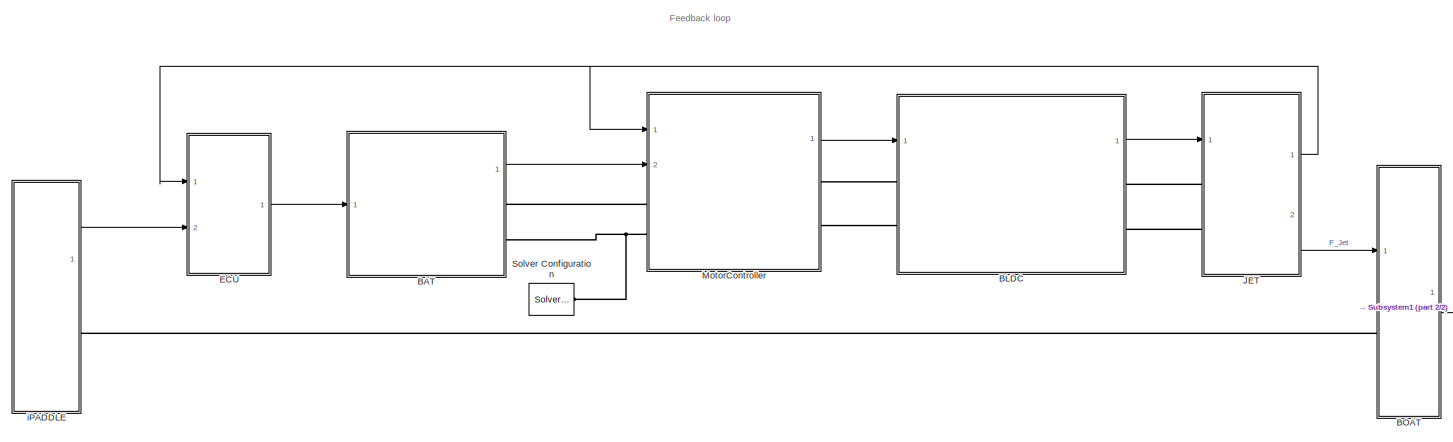
[diagram: root canvas - part 1/2, most of the canvas]
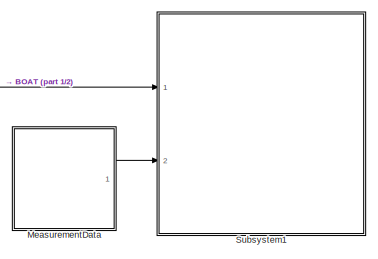
[diagram: root canvas - part 2/2, bottom right region]
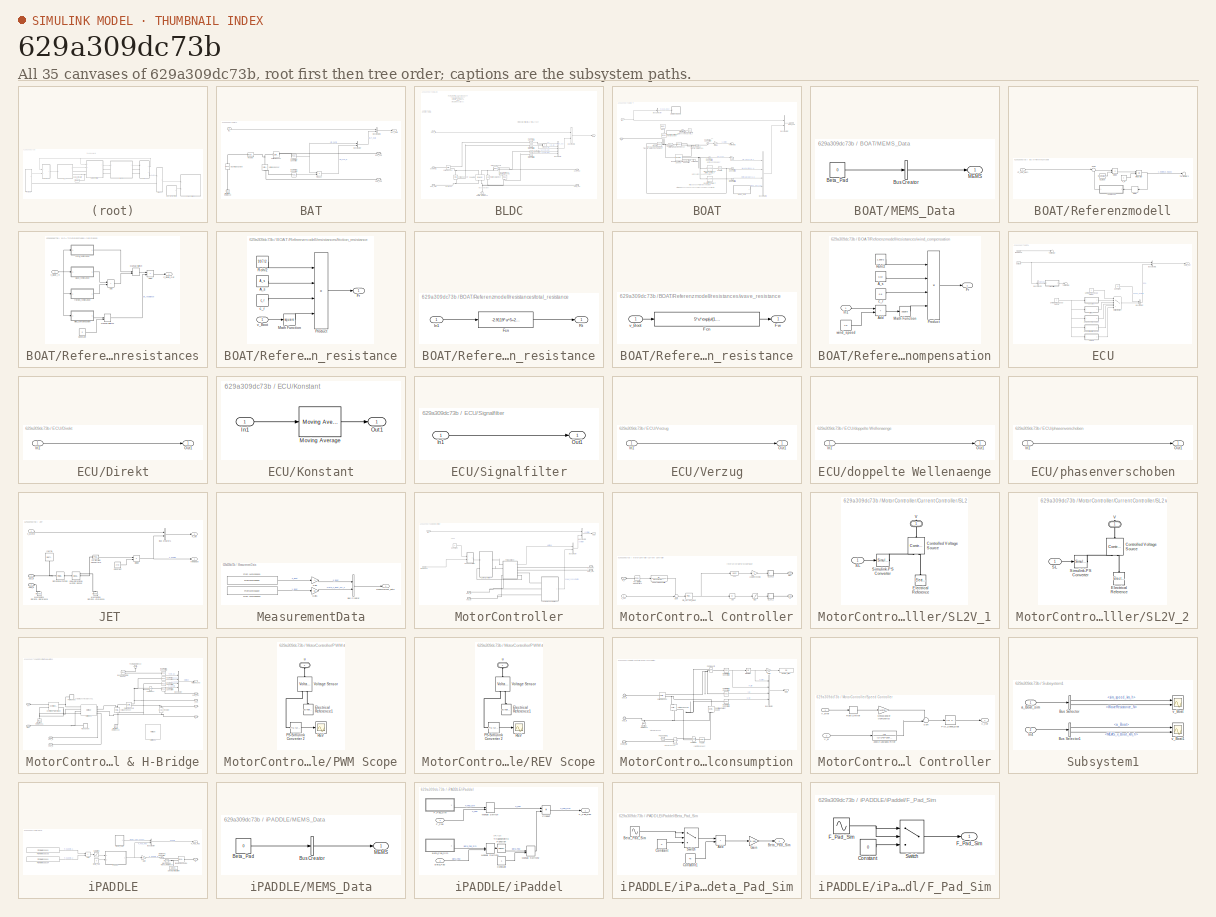
[diagram: thumbnail index - all 35 canvases of the model, root first then tree order]
MODEL slx_629a309dc73b
KIND model
CONFIG AbsTol = auto
CONFIG EnableMultiTasking = off
CONFIG FixedStep = auto
CONFIG MaxStep = auto
CONFIG MinStep = auto
CONFIG RelTol = 1e-3
CONFIG SampleTimeConstraint = Unconstrained
CONFIG Solver = VariableStepAuto
CONFIG SolverName = VariableStepAuto
CONFIG StartTime = 0.0
CONFIG StopTime = 250
BLOCK [SubSystem] BAT
  Ports = [1, 1, 0, 0, 0, 0, 2]
  RequestExecContextInheritance = off
BLOCK [Outport] BAT/BAT_data
BLOCK [BusCreator] BAT/Bus Creator
  DisplayOption = bar
  InheritFromInputs = on
  Inputs = 2
  Ports = [2, 1]
BLOCK [BusCreator] BAT/Bus Creator1
  DisplayOption = bar
  InheritFromInputs = on
  Inputs = 2
  Ports = [2, 1]
BLOCK [Reference] BAT/Current Sensor  REF=fl_lib/Electrical/Electrical Sensors/Current Sensor
  Ports = [0, 0, 0, 0, 0, 1, 2]
  SourceBlock = fl_lib/Electrical/Electrical Sensors/Current Sensor
  SourceProductBaseCode = SS
  SourceType = Current Sensor
BLOCK [Reference] BAT/DC Voltage Source  REF=fl_lib/Electrical/Electrical Sources/DC Voltage Source
  NameLocation = right
  Ports = [0, 0, 0, 0, 0, 1, 1]
  SourceBlock = fl_lib/Electrical/Electrical Sources/DC Voltage Source
  SourceProductBaseCode = SS
  SourceType = DC Voltage Source
BLOCK [Reference] BAT/Electrical Reference  REF=fl_lib/Electrical/Electrical Elements/Electrical Reference
  NameLocation = right
  Ports = [0, 0, 0, 0, 0, 1]
  SourceBlock = fl_lib/Electrical/Electrical Elements/Electrical Reference
  SourceProductBaseCode = SS
  SourceType = Electrical Reference
BLOCK [Inport] BAT/In1
BLOCK [Reference] BAT/PS-Simulink Converter  REF=nesl_utility/PS-Simulink
Converter
  Ports = [0, 1, 0, 0, 0, 1]
  SourceBlock = nesl_utility/PS-Simulink\nConverter
  SourceProductBaseCode = SS
  SourceType = PS-Simulink\nConverter
BLOCK [Reference] BAT/PS-Simulink Converter1  REF=nesl_utility/PS-Simulink
Converter
  Ports = [0, 1, 0, 0, 0, 1]
  SourceBlock = nesl_utility/PS-Simulink\nConverter
  SourceProductBaseCode = SS
  SourceType = PS-Simulink\nConverter
BLOCK [Product] BAT/Product
  Ports = [2, 1]
BLOCK [Reference] BAT/Resistor  REF=fl_lib/Electrical/Electrical Elements/Resistor
  Ports = [0, 0, 0, 0, 0, 1, 1]
  SourceBlock = fl_lib/Electrical/Electrical Elements/Resistor
  SourceProductBaseCode = SS
  SourceType = Resistor
BLOCK [Reference] BAT/Voltage Sensor  REF=fl_lib/Electrical/Electrical Sensors/Voltage Sensor
  NameLocation = right
  Ports = [0, 0, 0, 0, 0, 1, 2]
  SourceBlock = fl_lib/Electrical/Electrical Sensors/Voltage Sensor
  SourceProductBaseCode = SS
  SourceType = Voltage Sensor
BLOCK [PMIOPort] BAT/neg_volt
  Port = 2
  Side = Right
BLOCK [PMIOPort] BAT/pos_volt
  Side = Right
BLOCK [SubSystem] BLDC
  Ports = [1, 1, 0, 0, 0, 2, 2]
  RequestExecContextInheritance = off
BLOCK [BusCreator] BLDC/Bus Creator
  DisplayOption = bar
  InheritFromInputs = on
  Inputs = 5
  Ports = [5, 1]
BLOCK [BusCreator] BLDC/Bus Creator1
  DisplayOption = bar
  InheritFromInputs = on
  Inputs = 2
  Ports = [2, 1]
BLOCK [Reference] BLDC/Current Sensor  REF=fl_lib/Electrical/Electrical Sensors/Current Sensor
  Ports = [0, 0, 0, 0, 0, 1, 2]
  SourceBlock = fl_lib/Electrical/Electrical Sensors/Current Sensor
  SourceProductBaseCode = SS
  SourceType = Current Sensor
BLOCK [Reference] BLDC/DC Motor2  REF=ee_lib/Electromechanical/Brushed Motors/DC Motor
  NameLocation = left
  Ports = [0, 0, 0, 0, 0, 2, 2]
  SourceBlock = ee_lib/Electromechanical/Brushed Motors/DC Motor
  SourceProductBaseCode = PS
  SourceType = DC Motor
BLOCK [Reference] BLDC/Ideal Rotational Motion Sensor1  REF=fl_lib/Mechanical/Mechanical Sensors/Ideal Rotational
Motion Sensor
  NameLocation = right
  Ports = [0, 0, 0, 0, 0, 1, 3]
  SourceBlock = fl_lib/Mechanical/Mechanical Sensors/Ideal Rotational\nMotion Sensor
  SourceProductBaseCode = SS
  SourceType = Ideal Rotational\nMotion Sensor
BLOCK [Reference] BLDC/Mechanical Rotational Reference  REF=fl_lib/Mechanical/Rotational Elements/Mechanical
Rotational Reference
  NameLocation = right
  Ports = [0, 0, 0, 0, 0, 1]
  SourceBlock = fl_lib/Mechanical/Rotational Elements/Mechanical\nRotational Reference
  SourceProductBaseCode = SS
  SourceType = Mechanical\nRotational Reference
BLOCK [Outport] BLDC/Out1
BLOCK [Reference] BLDC/PS-Simulink Converter2  REF=nesl_utility/PS-Simulink
Converter
  Ports = [0, 1, 0, 0, 0, 1]
  SourceBlock = nesl_utility/PS-Simulink\nConverter
  SourceProductBaseCode = SS
  SourceType = PS-Simulink\nConverter
BLOCK [Reference] BLDC/PS-Simulink Converter3  REF=nesl_utility/PS-Simulink
Converter
  Ports = [0, 1, 0, 0, 0, 1]
  SourceBlock = nesl_utility/PS-Simulink\nConverter
  SourceProductBaseCode = SS
  SourceType = PS-Simulink\nConverter
BLOCK [Reference] BLDC/PS-Simulink Converter5  REF=nesl_utility/PS-Simulink
Converter
  Ports = [0, 1, 0, 0, 0, 1]
  SourceBlock = nesl_utility/PS-Simulink\nConverter
  SourceProductBaseCode = SS
  SourceType = PS-Simulink\nConverter
BLOCK [Reference] BLDC/PS-Simulink Converter6  REF=nesl_utility/PS-Simulink
Converter
  Ports = [0, 1, 0, 0, 0, 1]
  SourceBlock = nesl_utility/PS-Simulink\nConverter
  SourceProductBaseCode = SS
  SourceType = PS-Simulink\nConverter
BLOCK [Product] BLDC/Product
  Ports = [2, 1]
BLOCK [Reference] BLDC/Rotational Damper  REF=fl_lib/Mechanical/Rotational Elements/Rotational Damper
  Commented = on
  NameLocation = right
  Ports = [0, 0, 0, 0, 0, 1, 1]
  SourceBlock = fl_lib/Mechanical/Rotational Elements/Rotational Damper
  SourceProductBaseCode = SS
  SourceType = Rotational Damper
BLOCK [Reference] BLDC/Torque Sensor1  REF=fl_lib/Mechanical/Mechanical Sensors/Ideal Torque Sensor
  NameLocation = top
  Ports = [0, 0, 0, 0, 0, 1, 2]
  SourceBlock = fl_lib/Mechanical/Mechanical Sensors/Ideal Torque Sensor
  SourceProductBaseCode = SS
  SourceType = Ideal Torque Sensor
BLOCK [Reference] BLDC/Voltage Sensor  REF=fl_lib/Electrical/Electrical Sensors/Voltage Sensor
  NameLocation = left
  Ports = [0, 0, 0, 0, 0, 1, 2]
  SourceBlock = fl_lib/Electrical/Electrical Sensors/Voltage Sensor
  SourceProductBaseCode = SS
  SourceType = Voltage Sensor
BLOCK [Inport] BLDC/bus_in
BLOCK [PMIOPort] BLDC/neg_out
  Port = 2
  Side = Right
BLOCK [PMIOPort] BLDC/neg_out1
  Port = 4
  Side = Left
BLOCK [PMIOPort] BLDC/pos_out
  NameLocation = top
  Side = Right
BLOCK [PMIOPort] BLDC/pos_out1
  NameLocation = top
  Port = 3
  Side = Left
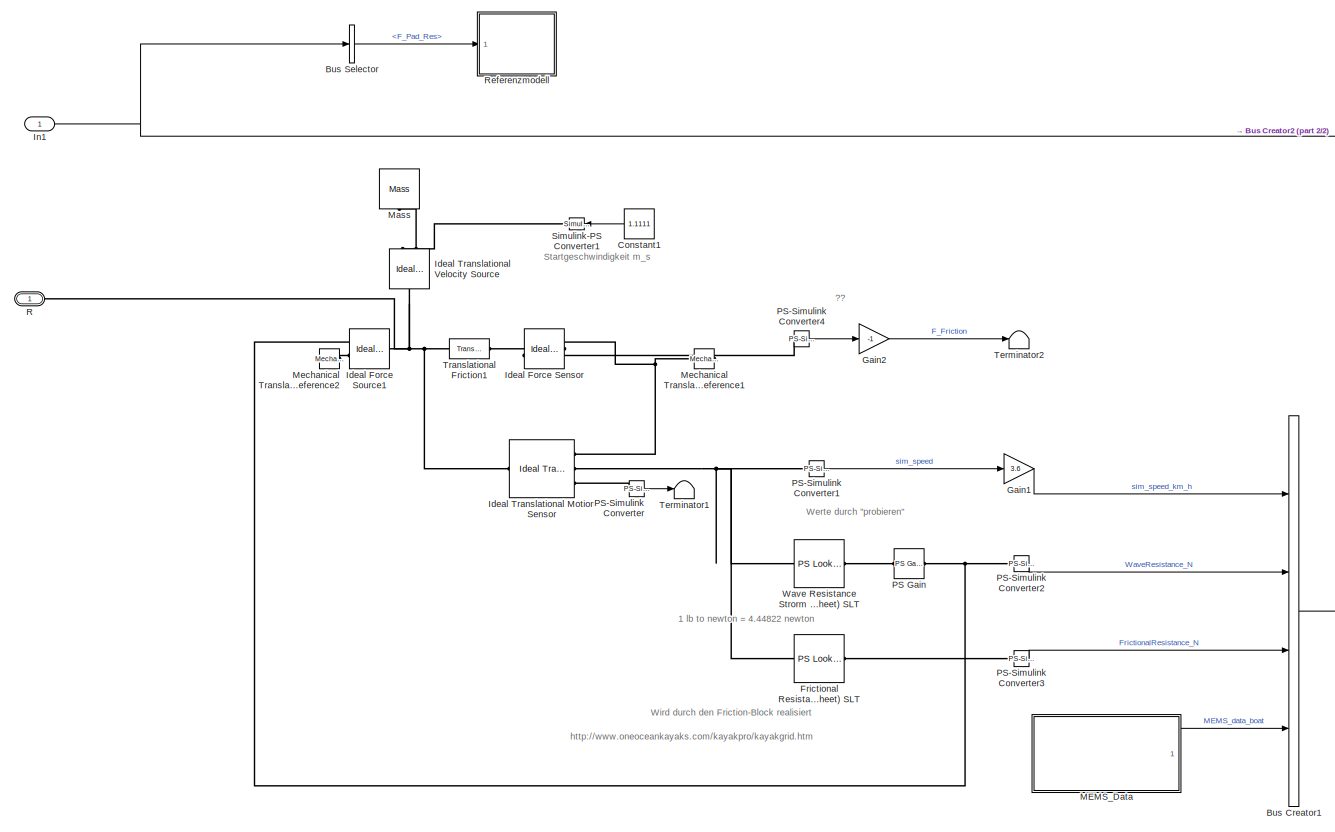
[diagram: BOAT - part 1/2, most of the canvas]
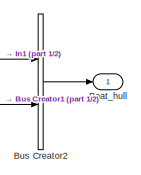
[diagram: BOAT - part 2/2, top right region]
BLOCK [SubSystem] BOAT
  Ports = [1, 1, 0, 0, 0, 1]
  RequestExecContextInheritance = off
BLOCK [Outport] BOAT/Boat_hull
  VectorParamsAs1DForOutWhenUnconnected = off
BLOCK [BusCreator] BOAT/Bus Creator1
  DisplayOption = bar
  InheritFromInputs = on
  Inputs = 4
  Ports = [4, 1]
BLOCK [BusCreator] BOAT/Bus Creator2
  DisplayOption = bar
  InheritFromInputs = on
  Inputs = 2
  Ports = [2, 1]
BLOCK [BusSelector] BOAT/Bus Selector
  OutputSignals = signal1.controller.signal1.signal1.paddle.F_Pad_Res
  Ports = [1, 1]
BLOCK [Constant] BOAT/Constant1
  NameLocation = top
  Value = 1.1111
BLOCK [Reference] BOAT/Frictional Resistance Strorm (datasheet) SLT  REF=fl_lib/Physical Signals/Lookup Tables/PS Lookup Table (1D)
  Commented = on
  Ports = [0, 0, 0, 0, 0, 1, 1]
  SourceBlock = fl_lib/Physical Signals/Lookup Tables/PS Lookup Table (1D)
  SourceProductBaseCode = SS
  SourceType = PS Lookup Table (1D)
BLOCK [Gain] BOAT/Gain1
  Gain = 3.6
BLOCK [Gain] BOAT/Gain2
  Gain = -1
BLOCK [Reference] BOAT/Ideal Force Sensor  REF=fl_lib/Mechanical/Mechanical Sensors/Ideal Force Sensor
  Ports = [0, 0, 0, 0, 0, 1, 2]
  SourceBlock = fl_lib/Mechanical/Mechanical Sensors/Ideal Force Sensor
  SourceProductBaseCode = SS
  SourceType = Ideal Force Sensor
BLOCK [Reference] BOAT/Ideal Force Source1  REF=fl_lib/Mechanical/Mechanical Sources/Ideal Force Source
  Ports = [0, 0, 0, 0, 0, 1, 2]
  SourceBlock = fl_lib/Mechanical/Mechanical Sources/Ideal Force Source
  SourceProductBaseCode = SS
  SourceType = Ideal Force Source
BLOCK [Reference] BOAT/Ideal Translational Motion Sensor  REF=fl_lib/Mechanical/Mechanical Sensors/Ideal Translational
Motion Sensor
  Ports = [0, 0, 0, 0, 0, 1, 3]
  SourceBlock = fl_lib/Mechanical/Mechanical Sensors/Ideal Translational\nMotion Sensor
  SourceProductBaseCode = SS
  SourceType = Ideal Translational\nMotion Sensor
BLOCK [Reference] BOAT/Ideal Translational Velocity Source  REF=fl_lib/Mechanical/Mechanical Sources/Ideal Translational
Velocity Source
  NameLocation = left
  Ports = [0, 0, 0, 0, 0, 1, 2]
  SourceBlock = fl_lib/Mechanical/Mechanical Sources/Ideal Translational\nVelocity Source
  SourceProductBaseCode = SS
  SourceType = Ideal Translational\nVelocity Source
BLOCK [Inport] BOAT/In1
BLOCK [SubSystem] BOAT/MEMS_Data
  Ports = [0, 1]
  RequestExecContextInheritance = off
BLOCK [Constant] BOAT/MEMS_Data/Beta_Pad
  Value = 0
BLOCK [BusCreator] BOAT/MEMS_Data/Bus Creator
  DisplayOption = bar
  InheritFromInputs = on
  Inputs = 1
  Ports = [1, 1]
BLOCK [Outport] BOAT/MEMS_Data/MEMS
BLOCK [Reference] BOAT/Mass  REF=fl_lib/Mechanical/Translational
Elements/Mass
  NameLocation = left
  Ports = [0, 0, 0, 0, 0, 1]
  SourceBlock = fl_lib/Mechanical/Translational\nElements/Mass
  SourceProductBaseCode = SS
  SourceType = Mass
BLOCK [Reference] BOAT/Mechanical Translational Reference1  REF=fl_lib/Mechanical/Translational
Elements/Mechanical
Translational
Reference
  NameLocation = top
  Ports = [0, 0, 0, 0, 0, 1]
  SourceBlock = fl_lib/Mechanical/Translational\nElements/Mechanical\nTranslational\nReference
  SourceProductBaseCode = SS
  SourceType = Mechanical\nTranslational\nReference
BLOCK [Reference] BOAT/Mechanical Translational Reference2  REF=fl_lib/Mechanical/Translational
Elements/Mechanical
Translational
Reference
  Ports = [0, 0, 0, 0, 0, 1]
  SourceBlock = fl_lib/Mechanical/Translational\nElements/Mechanical\nTranslational\nReference
  SourceProductBaseCode = SS
  SourceType = Mechanical\nTranslational\nReference
BLOCK [Reference] BOAT/PS Gain  REF=fl_lib/Physical Signals/Functions/PS Gain
  Ports = [0, 0, 0, 0, 0, 1, 1]
  SourceBlock = fl_lib/Physical Signals/Functions/PS Gain
  SourceProductBaseCode = SS
  SourceType = PS Gain
BLOCK [Reference] BOAT/PS-Simulink Converter  REF=nesl_utility/PS-Simulink
Converter
  Ports = [0, 1, 0, 0, 0, 1]
  SourceBlock = nesl_utility/PS-Simulink\nConverter
  SourceProductBaseCode = SS
  SourceType = PS-Simulink\nConverter
BLOCK [Reference] BOAT/PS-Simulink Converter1  REF=nesl_utility/PS-Simulink
Converter
  Ports = [0, 1, 0, 0, 0, 1]
  SourceBlock = nesl_utility/PS-Simulink\nConverter
  SourceProductBaseCode = SS
  SourceType = PS-Simulink\nConverter
BLOCK [Reference] BOAT/PS-Simulink Converter2  REF=nesl_utility/PS-Simulink
Converter
  Ports = [0, 1, 0, 0, 0, 1]
  SourceBlock = nesl_utility/PS-Simulink\nConverter
  SourceProductBaseCode = SS
  SourceType = PS-Simulink\nConverter
BLOCK [Reference] BOAT/PS-Simulink Converter3  REF=nesl_utility/PS-Simulink
Converter
  Ports = [0, 1, 0, 0, 0, 1]
  SourceBlock = nesl_utility/PS-Simulink\nConverter
  SourceProductBaseCode = SS
  SourceType = PS-Simulink\nConverter
BLOCK [Reference] BOAT/PS-Simulink Converter4  REF=nesl_utility/PS-Simulink
Converter
  Ports = [0, 1, 0, 0, 0, 1]
  SourceBlock = nesl_utility/PS-Simulink\nConverter
  SourceProductBaseCode = SS
  SourceType = PS-Simulink\nConverter
BLOCK [PMIOPort] BOAT/R
  NameLocation = top
  Side = Left
BLOCK [SubSystem] BOAT/Referenzmodell
  Ports = [1]
  RequestExecContextInheritance = off
BLOCK [Inport] BOAT/Referenzmodell/<F_Pad_Res>
BLOCK [Delay] BOAT/Referenzmodell/Delay
  InputPortMap = u0
  Ports = [1, 1]
BLOCK [Product] BOAT/Referenzmodell/Divide
  Inputs = */
  Ports = [2, 1]
BLOCK [Integrator] BOAT/Referenzmodell/Integrator
  InitialConditionSource = external
  Ports = [2, 1]
BLOCK [Sum] BOAT/Referenzmodell/Sum1
  Inputs = |+-
  Ports = [2, 1]
BLOCK [Terminator] BOAT/Referenzmodell/Terminator3
BLOCK [Constant] BOAT/Referenzmodell/m_Boat
  Value = BoatHull.Mass + 195.5
BLOCK [SubSystem] BOAT/Referenzmodell/resistances
  Ports = [1, 1]
  RequestExecContextInheritance = off
BLOCK [Sum] BOAT/Referenzmodell/resistances/Add
  IconShape = rectangular
  Ports = [2, 1]
BLOCK [Sum] BOAT/Referenzmodell/resistances/Add1
  IconShape = rectangular
  Ports = [2, 1]
BLOCK [Constant] BOAT/Referenzmodell/resistances/Constant
  Value = 0
BLOCK [Outport] BOAT/Referenzmodell/resistances/F_Resis_Out
  VectorParamsAs1DForOutWhenUnconnected = off
BLOCK [ManualSwitch] BOAT/Referenzmodell/resistances/Manual Switch
  CurrentSetting = 0
BLOCK [ManualSwitch] BOAT/Referenzmodell/resistances/Manual Switch1
BLOCK [SubSystem] BOAT/Referenzmodell/resistances/friction_resistance
  Ports = [1, 1]
  RequestExecContextInheritance = off
BLOCK [Constant] BOAT/Referenzmodell/resistances/friction_resistance/A_s
  Value = A_s
BLOCK [Outport] BOAT/Referenzmodell/resistances/friction_resistance/Fr
  VectorParamsAs1DForOutWhenUnconnected = off
BLOCK [Math] BOAT/Referenzmodell/resistances/friction_resistance/Math Function
  Operator = square
  Ports = [1, 1]
  SignedPower = on
BLOCK [Product] BOAT/Referenzmodell/resistances/friction_resistance/Product
  Inputs = 4
  Ports = [4, 1]
BLOCK [Constant] BOAT/Referenzmodell/resistances/friction_resistance/Roh//2
  Value = 997/2
BLOCK [Constant] BOAT/Referenzmodell/resistances/friction_resistance/c_r
  Value = c_r
BLOCK [Inport] BOAT/Referenzmodell/resistances/friction_resistance/v_Boot
BLOCK [SubSystem] BOAT/Referenzmodell/resistances/total_resistance
  Ports = [1, 1]
  RequestExecContextInheritance = off
BLOCK [Fcn] BOAT/Referenzmodell/resistances/total_resistance/Fcn
  Expr = -2.9119*u^5+28.358*u^4-99.765*u^3+165.24*u^2-119.06*u+33.315
BLOCK [Inport] BOAT/Referenzmodell/resistances/total_resistance/In1
BLOCK [Outport] BOAT/Referenzmodell/resistances/total_resistance/Rt
BLOCK [Inport] BOAT/Referenzmodell/resistances/v_Boat_In
BLOCK [SubSystem] BOAT/Referenzmodell/resistances/wave_resistance
  Ports = [1, 1]
  RequestExecContextInheritance = off
BLOCK [Fcn] BOAT/Referenzmodell/resistances/wave_resistance/Fcn
  Expr = 5*u*exp(u/(1.25*(4^0.5)))
BLOCK [Outport] BOAT/Referenzmodell/resistances/wave_resistance/Fw
BLOCK [Inport] BOAT/Referenzmodell/resistances/wave_resistance/v_Boot
BLOCK [SubSystem] BOAT/Referenzmodell/resistances/wind_compensation
  Ports = [1, 1]
  RequestExecContextInheritance = off
BLOCK [Constant] BOAT/Referenzmodell/resistances/wind_compensation/A_s
  Value = 0.54
BLOCK [Sum] BOAT/Referenzmodell/resistances/wind_compensation/Add
  IconShape = rectangular
  Ports = [2, 1]
BLOCK [Outport] BOAT/Referenzmodell/resistances/wind_compensation/Fr
  VectorParamsAs1DForOutWhenUnconnected = off
BLOCK [Inport] BOAT/Referenzmodell/resistances/wind_compensation/In1
BLOCK [Math] BOAT/Referenzmodell/resistances/wind_compensation/Math Function
  Operator = square
  Ports = [1, 1]
  SignedPower = on
BLOCK [Product] BOAT/Referenzmodell/resistances/wind_compensation/Product
  Inputs = 4
  Ports = [4, 1]
BLOCK [Constant] BOAT/Referenzmodell/resistances/wind_compensation/Roh//2
  Value = 1.269/2
BLOCK [Constant] BOAT/Referenzmodell/resistances/wind_compensation/c_r
  Value = 0.8
BLOCK [Constant] BOAT/Referenzmodell/resistances/wind_compensation/wind_speed
  Value = 4.5
BLOCK [Constant] BOAT/Referenzmodell/v_0
  SampleTime = -1
BLOCK [Reference] BOAT/Simulink-PS Converter1  REF=nesl_utility/Simulink-PS
Converter
  NameLocation = top
  Ports = [1, 0, 0, 0, 0, 0, 1]
  SourceBlock = nesl_utility/Simulink-PS\nConverter
  SourceProductBaseCode = SS
  SourceType = Simulink-PS\nConverter
BLOCK [Terminator] BOAT/Terminator1
BLOCK [Terminator] BOAT/Terminator2
BLOCK [Reference] BOAT/Translational Friction1  REF=fl_lib/Mechanical/Translational
Elements/Translational
Friction
  Ports = [0, 0, 0, 0, 0, 1, 1]
  SourceBlock = fl_lib/Mechanical/Translational\nElements/Translational\nFriction
  SourceProductBaseCode = SS
  SourceType = Translational\nFriction
BLOCK [Reference] BOAT/Wave Resistance Strorm (datasheet) SLT  REF=fl_lib/Physical Signals/Lookup Tables/PS Lookup Table (1D)
  Ports = [0, 0, 0, 0, 0, 1, 1]
  SourceBlock = fl_lib/Physical Signals/Lookup Tables/PS Lookup Table (1D)
  SourceProductBaseCode = SS
  SourceType = PS Lookup Table (1D)
BLOCK [SubSystem] ECU
  Ports = [2, 1]
  RequestExecContextInheritance = off
BLOCK [BusCreator] ECU/Bus Creator
  DisplayOption = bar
  InheritFromInputs = on
  Inputs = 2
  Ports = [2, 1]
BLOCK [BusCreator] ECU/Bus Creator1
  DisplayOption = bar
  InheritFromInputs = on
  Inputs = 2
  Ports = [2, 1]
BLOCK [BusSelector] ECU/Bus Selector
  OutputSignals = MEMS_data_paddel.signal1
  Ports = [1, 1]
BLOCK [Constant] ECU/Constant
  Value = 10
BLOCK [SubSystem] ECU/Direkt
  Ports = [1, 1]
  RequestExecContextInheritance = off
BLOCK [Inport] ECU/Direkt/In1
BLOCK [Outport] ECU/Direkt/Out1
BLOCK [SubSystem] ECU/Konstant
  Ports = [1, 1]
  RequestExecContextInheritance = off
BLOCK [Inport] ECU/Konstant/In1
BLOCK [Reference] ECU/Konstant/Moving Average  REF=eeGeneralControl/Moving Average
  Ports = [1, 1]
  SourceBlock = eeGeneralControl/Moving Average
  SourceProductBaseCode = PS
  SourceType = Moving Average
BLOCK [Outport] ECU/Konstant/Out1
BLOCK [MultiPortSwitch] ECU/Multiport Switch
  InputSameDT = off
  Inputs = 5
  Ports = [6, 1]
  SaturateOnIntegerOverflow = off
BLOCK [SubSystem] ECU/Signalfilter
  Ports = [1, 1]
  RequestExecContextInheritance = off
BLOCK [Inport] ECU/Signalfilter/In1
BLOCK [Outport] ECU/Signalfilter/Out1
BLOCK [Terminator] ECU/Terminator
BLOCK [Terminator] ECU/Terminator1
BLOCK [Constant] ECU/Unterstuetzungsauswahl
BLOCK [Constant] ECU/Unterstuetzungsauswahl1
BLOCK [SubSystem] ECU/Verzug
  Ports = [1, 1]
  RequestExecContextInheritance = off
BLOCK [Inport] ECU/Verzug/In1
BLOCK [Outport] ECU/Verzug/Out1
BLOCK [Inport] ECU/data_in
  Port = 2
BLOCK [Outport] ECU/data_out
  VectorParamsAs1DForOutWhenUnconnected = off
BLOCK [SubSystem] ECU/doppelte Wellenaenge
  Ports = [1, 1]
  RequestExecContextInheritance = off
BLOCK [Inport] ECU/doppelte Wellenaenge/In1
BLOCK [Outport] ECU/doppelte Wellenaenge/Out1
BLOCK [Inport] ECU/feedback
BLOCK [SubSystem] ECU/phasenverschoben
  Ports = [1, 1]
  RequestExecContextInheritance = off
BLOCK [Inport] ECU/phasenverschoben/In1
BLOCK [Outport] ECU/phasenverschoben/Out1
BLOCK [SubSystem] JET 
  Ports = [1, 2, 0, 0, 0, 2]
  RequestExecContextInheritance = off
BLOCK [BusCreator] JET /Bus Creator1
  DisplayOption = bar
  InheritFromInputs = on
  Inputs = 2
  Ports = [2, 1]
BLOCK [Constant] JET /Constant
  Value = 2*pi
BLOCK [Product] JET /Divide
  Inputs = */
  Ports = [2, 1]
BLOCK [Outport] JET /F_Jet
  Port = 2
BLOCK [Reference] JET /Ideal Rotational Motion Sensor  REF=fl_lib/Mechanical/Mechanical Sensors/Ideal Rotational
Motion Sensor
  Ports = [0, 0, 0, 0, 0, 1, 3]
  SourceBlock = fl_lib/Mechanical/Mechanical Sensors/Ideal Rotational\nMotion Sensor
  SourceProductBaseCode = SS
  SourceType = Ideal Rotational\nMotion Sensor
BLOCK [Reference] JET /Inertia  REF=fl_lib/Mechanical/Rotational Elements/Inertia
  NameLocation = left
  Ports = [0, 0, 0, 0, 0, 1]
  SourceBlock = fl_lib/Mechanical/Rotational Elements/Inertia
  SourceProductBaseCode = SS
  SourceType = Inertia
BLOCK [Reference] JET /Mechanical Rotational Reference  REF=fl_lib/Mechanical/Rotational Elements/Mechanical
Rotational Reference
  NameLocation = right
  Ports = [0, 0, 0, 0, 0, 1]
  SourceBlock = fl_lib/Mechanical/Rotational Elements/Mechanical\nRotational Reference
  SourceProductBaseCode = SS
  SourceType = Mechanical\nRotational Reference
BLOCK [Reference] JET /Mechanical Rotational Reference1  REF=fl_lib/Mechanical/Rotational Elements/Mechanical
Rotational Reference
  NameLocation = right
  Ports = [0, 0, 0, 0, 0, 1]
  SourceBlock = fl_lib/Mechanical/Rotational Elements/Mechanical\nRotational Reference
  SourceProductBaseCode = SS
  SourceType = Mechanical\nRotational Reference
BLOCK [Reference] JET /PS-Simulink Converter6  REF=nesl_utility/PS-Simulink
Converter
  Ports = [0, 1, 0, 0, 0, 1]
  SourceBlock = nesl_utility/PS-Simulink\nConverter
  SourceProductBaseCode = SS
  SourceType = PS-Simulink\nConverter
BLOCK [Reference] JET /Rotational Friction  REF=fl_lib/Mechanical/Rotational Elements/Rotational Friction
  Ports = [0, 0, 0, 0, 0, 1, 1]
  SourceBlock = fl_lib/Mechanical/Rotational Elements/Rotational Friction
  SourceProductBaseCode = SS
  SourceType = Rotational Friction
BLOCK [Outport] JET /feedback
BLOCK [Inport] JET /n_Motor
BLOCK [PMIOPort] JET /neg_in
  NameLocation = top
  Port = 2
  Side = Left
BLOCK [PMIOPort] JET /pos_in
  NameLocation = top
  Side = Left
BLOCK [SubSystem] MeasurementData
  Ports = [0, 1]
  RequestExecContextInheritance = off
BLOCK [BusCreator] MeasurementData/Bus Creator
  DisplayOption = bar
  InheritFromInputs = on
  Inputs = 2
  Ports = [2, 1]
BLOCK [FromWorkspace] MeasurementData/From Workspace1
  VariableName = tsc_paddel4.scaledAccelX
BLOCK [FromWorkspace] MeasurementData/From Workspace2
  VariableName = tsc_paddel4.speed
BLOCK [Gain] MeasurementData/Gain
  Gain = -1
BLOCK [Gain] MeasurementData/Gain1
  Gain = 3.6
BLOCK [Outport] MeasurementData/measurement_data
BLOCK [SubSystem] MotorController
  Ports = [2, 1, 0, 0, 0, 2, 2]
  RequestExecContextInheritance = off
BLOCK [BusCreator] MotorController/Bus Creator
  DisplayOption = bar
  InheritFromInputs = on
  Inputs = 2
  Ports = [2, 1]
BLOCK [BusCreator] MotorController/Bus Creator1
  DisplayOption = bar
  InheritFromInputs = on
  Inputs = 2
  Ports = [2, 1]
BLOCK [Constant] MotorController/Constant
  Value = 0
BLOCK [SubSystem] MotorController/Current Controller
  NameLocation = top
  Ports = [1, 0, 0, 0, 0, 1, 2]
  RequestExecContextInheritance = off
BLOCK [TransferFcn] MotorController/Current Controller/20Hz Lowpass Filter
  Denominator = [1/(2*pi*20) 1]
BLOCK [Abs] MotorController/Current Controller/Abs
  SaturateOnIntegerOverflow = off
BLOCK [Fcn] MotorController/Current Controller/Fcn
  Expr = u(1)<0
BLOCK [Gain] MotorController/Current Controller/Logic threshold
  Gain = 5
BLOCK [Reference] MotorController/Current Controller/PID_Current_Boat  REF=simulink/Continuous/PID Controller
  Ports = [1, 1]
  SourceBlock = simulink/Continuous/PID Controller
  SourceProductBaseCode = SL
  SourceType = PID 1dof
BLOCK [Reference] MotorController/Current Controller/PS-Simulink Converter 1  REF=nesl_utility/PS-Simulink
Converter
  Ports = [0, 1, 0, 0, 0, 1]
  SourceBlock = nesl_utility/PS-Simulink\nConverter
  SourceProductBaseCode = SS
  SourceType = PS-Simulink\nConverter
BLOCK [PMIOPort] MotorController/Current Controller/REV
  Port = 2
  Side = Right
BLOCK [SubSystem] MotorController/Current Controller/SL2V_1
  Ports = [1, 0, 0, 0, 0, 0, 1]
  RequestExecContextInheritance = off
BLOCK [Reference] MotorController/Current Controller/SL2V_1/Controlled Voltage Source  REF=fl_lib/Electrical/Electrical Sources/Controlled Voltage
Source
  NameLocation = right
  Ports = [0, 0, 0, 0, 0, 1, 2]
  SourceBlock = fl_lib/Electrical/Electrical Sources/Controlled Voltage\nSource
  SourceProductBaseCode = SS
  SourceType = Controlled Voltage\nSource
BLOCK [Reference] MotorController/Current Controller/SL2V_1/Electrical Reference  REF=fl_lib/Electrical/Electrical Elements/Electrical Reference
  NameLocation = right
  Ports = [0, 0, 0, 0, 0, 1]
  SourceBlock = fl_lib/Electrical/Electrical Elements/Electrical Reference
  SourceProductBaseCode = SS
  SourceType = Electrical Reference
BLOCK [Inport] MotorController/Current Controller/SL2V_1/SL
BLOCK [Reference] MotorController/Current Controller/SL2V_1/Simulink-PS Converter  REF=nesl_utility/Simulink-PS
Converter
  Ports = [1, 0, 0, 0, 0, 0, 1]
  SourceBlock = nesl_utility/Simulink-PS\nConverter
  SourceProductBaseCode = SS
  SourceType = Simulink-PS\nConverter
BLOCK [PMIOPort] MotorController/Current Controller/SL2V_1/V
  NameLocation = right
  Side = Right
BLOCK [SubSystem] MotorController/Current Controller/SL2V_2
  Ports = [1, 0, 0, 0, 0, 0, 1]
  RequestExecContextInheritance = off
BLOCK [Reference] MotorController/Current Controller/SL2V_2/Controlled Voltage Source  REF=fl_lib/Electrical/Electrical Sources/Controlled Voltage
Source
  NameLocation = right
  Ports = [0, 0, 0, 0, 0, 1, 2]
  SourceBlock = fl_lib/Electrical/Electrical Sources/Controlled Voltage\nSource
  SourceProductBaseCode = SS
  SourceType = Controlled Voltage\nSource
BLOCK [Reference] MotorController/Current Controller/SL2V_2/Electrical Reference  REF=fl_lib/Electrical/Electrical Elements/Electrical Reference
  NameLocation = right
  Ports = [0, 0, 0, 0, 0, 1]
  SourceBlock = fl_lib/Electrical/Electrical Elements/Electrical Reference
  SourceProductBaseCode = SS
  SourceType = Electrical Reference
BLOCK [Inport] MotorController/Current Controller/SL2V_2/SL
BLOCK [Reference] MotorController/Current Controller/SL2V_2/Simulink-PS Converter  REF=nesl_utility/Simulink-PS
Converter
  Ports = [1, 0, 0, 0, 0, 0, 1]
  SourceBlock = nesl_utility/Simulink-PS\nConverter
  SourceProductBaseCode = SS
  SourceType = Simulink-PS\nConverter
BLOCK [PMIOPort] MotorController/Current Controller/SL2V_2/V
  NameLocation = right
  Side = Right
BLOCK [Sum] MotorController/Current Controller/Sum
  Inputs = -+|
  Ports = [2, 1]
BLOCK [PMIOPort] MotorController/Current Controller/V_i
  Port = 3
  Side = Left
BLOCK [Inport] MotorController/Current Controller/V_iref
BLOCK [PMIOPort] MotorController/Current Controller/Vr
  Side = Right
BLOCK [Saturate] MotorController/Current Controller/[0,5]
  LowerLimit = 0
  UpperLimit = 5
BLOCK [Inport] MotorController/In1
  Port = 2
BLOCK [Outport] MotorController/Out1
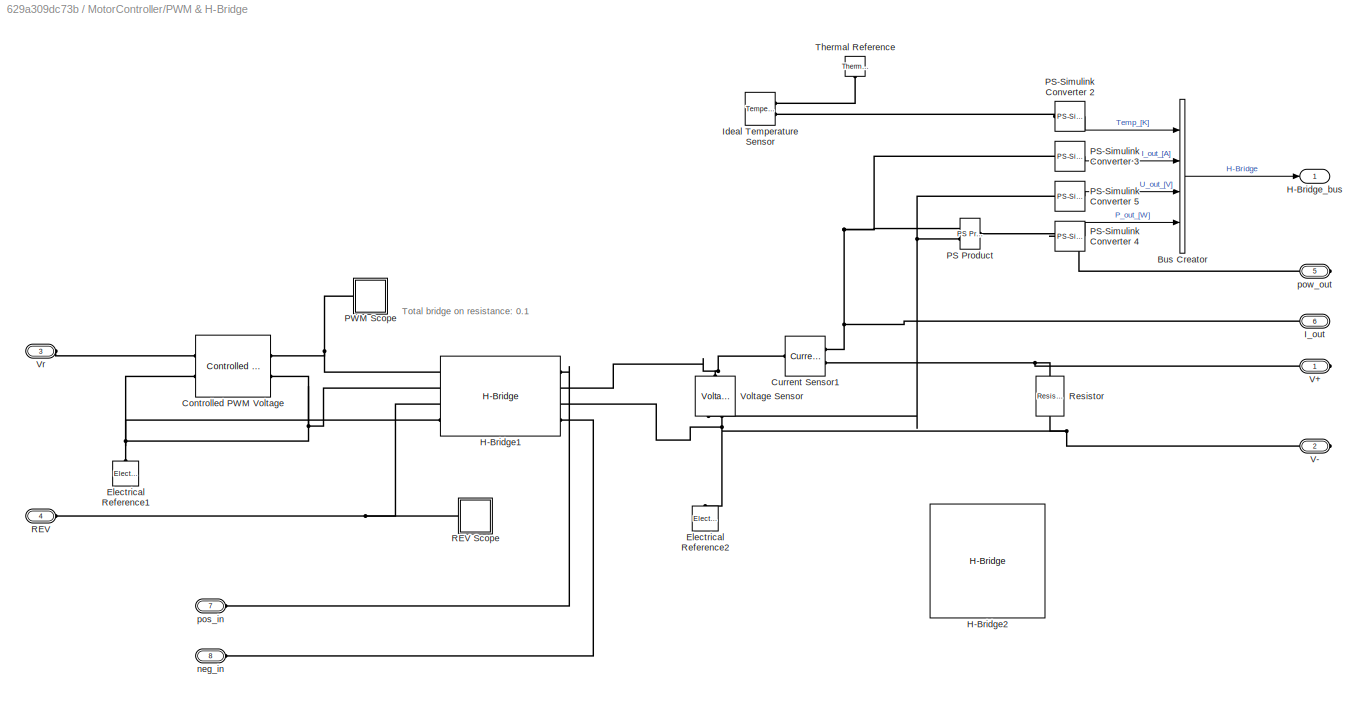
BLOCK [SubSystem] MotorController/PWM & H-Bridge
  NameLocation = top
  Ports = [0, 1, 0, 0, 0, 4, 4]
  RequestExecContextInheritance = off
BLOCK [BusCreator] MotorController/PWM & H-Bridge/Bus Creator
  DisplayOption = bar
  InheritFromInputs = on
  Inputs = 4
  Ports = [4, 1]
BLOCK [Reference] MotorController/PWM & H-Bridge/Controlled PWM Voltage  REF=ee_lib/Integrated Circuits/Controlled PWM
Voltage
  Ports = [0, 0, 0, 0, 0, 2, 2]
  SourceBlock = ee_lib/Integrated Circuits/Controlled PWM\nVoltage
  SourceProductBaseCode = PS
  SourceType = Controlled PWM\nVoltage
BLOCK [Reference] MotorController/PWM & H-Bridge/Current Sensor1  REF=fl_lib/Electrical/Electrical Sensors/Current Sensor
  Ports = [0, 0, 0, 0, 0, 1, 2]
  SourceBlock = fl_lib/Electrical/Electrical Sensors/Current Sensor
  SourceProductBaseCode = SS
  SourceType = Current Sensor
BLOCK [Reference] MotorController/PWM & H-Bridge/Electrical Reference1  REF=fl_lib/Electrical/Electrical Elements/Electrical Reference
  NameLocation = right
  Ports = [0, 0, 0, 0, 0, 1]
  SourceBlock = fl_lib/Electrical/Electrical Elements/Electrical Reference
  SourceProductBaseCode = SS
  SourceType = Electrical Reference
BLOCK [Reference] MotorController/PWM & H-Bridge/Electrical Reference2  REF=fl_lib/Electrical/Electrical Elements/Electrical Reference
  NameLocation = right
  Ports = [0, 0, 0, 0, 0, 1]
  SourceBlock = fl_lib/Electrical/Electrical Elements/Electrical Reference
  SourceProductBaseCode = SS
  SourceType = Electrical Reference
BLOCK [Reference] MotorController/PWM & H-Bridge/H-Bridge1  REF=ee_lib/Semiconductors &
Converters/Converters/H-Bridge
  Ports = [0, 0, 0, 0, 0, 4, 4]
  SourceBlock = ee_lib/Semiconductors &\nConverters/Converters/H-Bridge
  SourceProductBaseCode = PS
  SourceType = H-Bridge
BLOCK [Reference] MotorController/PWM & H-Bridge/H-Bridge2  REF=ee_lib/Semiconductors &
Converters/Converters/H-Bridge
  Commented = on
  Ports = [0, 0, 0, 0, 0, 4, 5]
  SourceBlock = ee_lib/Semiconductors &\nConverters/Converters/H-Bridge
  SourceProductBaseCode = PS
  SourceType = H-Bridge
BLOCK [Outport] MotorController/PWM & H-Bridge/H-Bridge_bus
BLOCK [PMIOPort] MotorController/PWM & H-Bridge/I_out
  Port = 6
  Side = Right
BLOCK [Reference] MotorController/PWM & H-Bridge/Ideal Temperature Sensor  REF=fl_lib/Thermal/Thermal Sensors/Temperature Sensor
  Commented = on
  Ports = [0, 0, 0, 0, 0, 1, 2]
  SourceBlock = fl_lib/Thermal/Thermal Sensors/Temperature Sensor
  SourceProductBaseCode = SS
  SourceType = Temperature Sensor
BLOCK [Reference] MotorController/PWM & H-Bridge/PS Product  REF=fl_lib/Physical Signals/Functions/PS Product
  Ports = [0, 0, 0, 0, 0, 2, 1]
  SourceBlock = fl_lib/Physical Signals/Functions/PS Product
  SourceProductBaseCode = SS
  SourceType = PS Product
BLOCK [Reference] MotorController/PWM & H-Bridge/PS-Simulink Converter 2  REF=nesl_utility/PS-Simulink
Converter
  Ports = [0, 1, 0, 0, 0, 1]
  SourceBlock = nesl_utility/PS-Simulink\nConverter
  SourceProductBaseCode = SS
  SourceType = PS-Simulink\nConverter
BLOCK [Reference] MotorController/PWM & H-Bridge/PS-Simulink Converter 3  REF=nesl_utility/PS-Simulink
Converter
  Ports = [0, 1, 0, 0, 0, 1]
  SourceBlock = nesl_utility/PS-Simulink\nConverter
  SourceProductBaseCode = SS
  SourceType = PS-Simulink\nConverter
BLOCK [Reference] MotorController/PWM & H-Bridge/PS-Simulink Converter 4  REF=nesl_utility/PS-Simulink
Converter
  Ports = [0, 1, 0, 0, 0, 1]
  SourceBlock = nesl_utility/PS-Simulink\nConverter
  SourceProductBaseCode = SS
  SourceType = PS-Simulink\nConverter
BLOCK [Reference] MotorController/PWM & H-Bridge/PS-Simulink Converter 5  REF=nesl_utility/PS-Simulink
Converter
  Ports = [0, 1, 0, 0, 0, 1]
  SourceBlock = nesl_utility/PS-Simulink\nConverter
  SourceProductBaseCode = SS
  SourceType = PS-Simulink\nConverter
BLOCK [SubSystem] MotorController/PWM & H-Bridge/PWM Scope
  Ports = [0, 0, 0, 0, 0, 1]
  RequestExecContextInheritance = off
BLOCK [Reference] MotorController/PWM & H-Bridge/PWM Scope/Electrical Reference1  REF=fl_lib/Electrical/Electrical Elements/Electrical Reference
  NameLocation = right
  Ports = [0, 0, 0, 0, 0, 1]
  SourceBlock = fl_lib/Electrical/Electrical Elements/Electrical Reference
  SourceProductBaseCode = SS
  SourceType = Electrical Reference
BLOCK [Reference] MotorController/PWM & H-Bridge/PWM Scope/PS-Simulink Converter 2  REF=nesl_utility/PS-Simulink
Converter
  Ports = [0, 1, 0, 0, 0, 1]
  SourceBlock = nesl_utility/PS-Simulink\nConverter
  SourceProductBaseCode = SS
  SourceType = PS-Simulink\nConverter
BLOCK [Scope] MotorController/PWM & H-Bridge/PWM Scope/REV
  Floating = off
  NumInputPorts = 1
  Ports = [1]
  ScopeSpecificationString = Simulink.scopes.TimeScopeBlockCfg('CurrentConfiguration', extmgr.ConfigurationSet(extmgr.Configuration('Core','General UI',true),extmgr.Configuration('Core','Source UI',true),extmgr.Configuration('Sources','WiredSimulink',true,'DataLoggingVariableName','ScopeData6','DataLoggingSaveFormat','StructureWithTime','DataLoggingDecimation','1','DataLoggingDecimateData',true),extmgr.Configuration('Visuals'...<+1695ch>
BLOCK [Reference] MotorController/PWM & H-Bridge/PWM Scope/Voltage Sensor  REF=fl_lib/Electrical/Electrical Sensors/Voltage Sensor
  NameLocation = right
  Ports = [0, 0, 0, 0, 0, 1, 2]
  SourceBlock = fl_lib/Electrical/Electrical Sensors/Voltage Sensor
  SourceProductBaseCode = SS
  SourceType = Voltage Sensor
BLOCK [PMIOPort] MotorController/PWM & H-Bridge/PWM Scope/u
  NameLocation = right
  Side = Left
BLOCK [PMIOPort] MotorController/PWM & H-Bridge/REV
  Port = 4
  Side = Left
BLOCK [SubSystem] MotorController/PWM & H-Bridge/REV Scope
  Ports = [0, 0, 0, 0, 0, 1]
  RequestExecContextInheritance = off
BLOCK [Reference] MotorController/PWM & H-Bridge/REV Scope/Electrical Reference1  REF=fl_lib/Electrical/Electrical Elements/Electrical Reference
  NameLocation = right
  Ports = [0, 0, 0, 0, 0, 1]
  SourceBlock = fl_lib/Electrical/Electrical Elements/Electrical Reference
  SourceProductBaseCode = SS
  SourceType = Electrical Reference
BLOCK [Reference] MotorController/PWM & H-Bridge/REV Scope/PS-Simulink Converter 2  REF=nesl_utility/PS-Simulink
Converter
  Ports = [0, 1, 0, 0, 0, 1]
  SourceBlock = nesl_utility/PS-Simulink\nConverter
  SourceProductBaseCode = SS
  SourceType = PS-Simulink\nConverter
BLOCK [Scope] MotorController/PWM & H-Bridge/REV Scope/REV
  Floating = off
  NumInputPorts = 1
  Ports = [1]
  ScopeSpecificationString = Simulink.scopes.TimeScopeBlockCfg('CurrentConfiguration', extmgr.ConfigurationSet(extmgr.Configuration('Core','General UI',true),extmgr.Configuration('Core','Source UI',true),extmgr.Configuration('Sources','WiredSimulink',true,'DataLoggingVariableName','ScopeData6','DataLoggingSaveFormat','StructureWithTime','DataLoggingDecimation','1','DataLoggingDecimateData',true),extmgr.Configuration('Visuals'...<+1695ch>
BLOCK [Reference] MotorController/PWM & H-Bridge/REV Scope/Voltage Sensor  REF=fl_lib/Electrical/Electrical Sensors/Voltage Sensor
  NameLocation = right
  Ports = [0, 0, 0, 0, 0, 1, 2]
  SourceBlock = fl_lib/Electrical/Electrical Sensors/Voltage Sensor
  SourceProductBaseCode = SS
  SourceType = Voltage Sensor
BLOCK [PMIOPort] MotorController/PWM & H-Bridge/REV Scope/u
  NameLocation = right
  Side = Left
BLOCK [Reference] MotorController/PWM & H-Bridge/Resistor  REF=fl_lib/Electrical/Electrical Elements/Resistor
  Commented = on
  NameLocation = left
  Ports = [0, 0, 0, 0, 0, 1, 1]
  SourceBlock = fl_lib/Electrical/Electrical Elements/Resistor
  SourceProductBaseCode = SS
  SourceType = Resistor
BLOCK [Reference] MotorController/PWM & H-Bridge/Thermal Reference  REF=fl_lib/Thermal/Thermal Elements/Thermal Reference
  NameLocation = right
  Ports = [0, 0, 0, 0, 0, 1]
  SourceBlock = fl_lib/Thermal/Thermal Elements/Thermal Reference
  SourceProductBaseCode = SS
  SourceType = Thermal Reference
BLOCK [PMIOPort] MotorController/PWM & H-Bridge/V+
  Side = Right
BLOCK [PMIOPort] MotorController/PWM & H-Bridge/V-
  Port = 2
  Side = Right
BLOCK [Reference] MotorController/PWM & H-Bridge/Voltage Sensor  REF=fl_lib/Electrical/Electrical Sensors/Voltage Sensor
  NameLocation = right
  Ports = [0, 0, 0, 0, 0, 1, 2]
  SourceBlock = fl_lib/Electrical/Electrical Sensors/Voltage Sensor
  SourceProductBaseCode = SS
  SourceType = Voltage Sensor
BLOCK [PMIOPort] MotorController/PWM & H-Bridge/Vr
  Port = 3
  Side = Left
BLOCK [PMIOPort] MotorController/PWM & H-Bridge/neg_in
  Port = 8
  Side = Left
BLOCK [PMIOPort] MotorController/PWM & H-Bridge/pos_in
  Port = 7
  Side = Left
BLOCK [PMIOPort] MotorController/PWM & H-Bridge/pow_out
  Port = 5
  Side = Right
BLOCK [SubSystem] MotorController/Power consumption
  NameLocation = top
  Ports = [0, 1, 0, 0, 0, 3]
  RequestExecContextInheritance = off
BLOCK [BusCreator] MotorController/Power consumption/Bus Creator
  DisplayOption = bar
  InheritFromInputs = on
  Inputs = 4
  Ports = [4, 1]
BLOCK [Reference] MotorController/Power consumption/Controlled Current Source  REF=fl_lib/Electrical/Electrical Sources/Controlled Current
Source
  NameLocation = right
  Ports = [0, 0, 0, 0, 0, 1, 2]
  SourceBlock = fl_lib/Electrical/Electrical Sources/Controlled Current\nSource
  SourceProductBaseCode = SS
  SourceType = Controlled Current\nSource
BLOCK [Reference] MotorController/Power consumption/Current Sensor  REF=fl_lib/Electrical/Electrical Sensors/Current Sensor
  Ports = [0, 0, 0, 0, 0, 1, 2]
  SourceBlock = fl_lib/Electrical/Electrical Sensors/Current Sensor
  SourceProductBaseCode = SS
  SourceType = Current Sensor
BLOCK [Reference] MotorController/Power consumption/Electrical Reference  REF=fl_lib/Electrical/Electrical Elements/Electrical Reference
  NameLocation = right
  Ports = [0, 0, 0, 0, 0, 1]
  SourceBlock = fl_lib/Electrical/Electrical Elements/Electrical Reference
  SourceProductBaseCode = SS
  SourceType = Electrical Reference
BLOCK [Display] MotorController/Power consumption/Energy_[Wh]
  Decimation = 1
  Ports = [1]
BLOCK [Gain] MotorController/Power consumption/Gain
  Gain = 1/3600
BLOCK [Integrator] MotorController/Power consumption/Integrator
  Ports = [1, 1]
BLOCK [Outport] MotorController/Power consumption/Out1
BLOCK [Reference] MotorController/Power consumption/PS Add  REF=fl_lib/Physical Signals/Functions/PS Add
  Ports = [0, 0, 0, 0, 0, 2, 1]
  SourceBlock = fl_lib/Physical Signals/Functions/PS Add
  SourceProductBaseCode = SS
  SourceType = PS Add
BLOCK [Reference] MotorController/Power consumption/PS Constant1  REF=fl_lib/Physical Signals/Sources/PS Constant
  Ports = [0, 0, 0, 0, 0, 0, 1]
  SourceBlock = fl_lib/Physical Signals/Sources/PS Constant
  SourceProductBaseCode = SS
  SourceType = PS Constant
BLOCK [Reference] MotorController/Power consumption/PS Divide  REF=fl_lib/Physical Signals/Functions/PS Divide
  Ports = [0, 0, 0, 0, 0, 2, 1]
  SourceBlock = fl_lib/Physical Signals/Functions/PS Divide
  SourceProductBaseCode = SS
  SourceType = PS Divide
BLOCK [Reference] MotorController/Power consumption/PS Gain  REF=fl_lib/Physical Signals/Functions/PS Gain
  Ports = [0, 0, 0, 0, 0, 1, 1]
  SourceBlock = fl_lib/Physical Signals/Functions/PS Gain
  SourceProductBaseCode = SS
  SourceType = PS Gain
BLOCK [Reference] MotorController/Power consumption/PS Product2  REF=fl_lib/Physical Signals/Functions/PS Product
  Ports = [0, 0, 0, 0, 0, 2, 1]
  SourceBlock = fl_lib/Physical Signals/Functions/PS Product
  SourceProductBaseCode = SS
  SourceType = PS Product
BLOCK [Reference] MotorController/Power consumption/PS-Simulink Converter 1  REF=nesl_utility/PS-Simulink
Converter
  Ports = [0, 1, 0, 0, 0, 1]
  SourceBlock = nesl_utility/PS-Simulink\nConverter
  SourceProductBaseCode = SS
  SourceType = PS-Simulink\nConverter
BLOCK [Reference] MotorController/Power consumption/PS-Simulink Converter 2  REF=nesl_utility/PS-Simulink
Converter
  Ports = [0, 1, 0, 0, 0, 1]
  SourceBlock = nesl_utility/PS-Simulink\nConverter
  SourceProductBaseCode = SS
  SourceType = PS-Simulink\nConverter
BLOCK [Reference] MotorController/Power consumption/PS-Simulink Converter 3  REF=nesl_utility/PS-Simulink
Converter
  Ports = [0, 1, 0, 0, 0, 1]
  SourceBlock = nesl_utility/PS-Simulink\nConverter
  SourceProductBaseCode = SS
  SourceType = PS-Simulink\nConverter
BLOCK [Reference] MotorController/Power consumption/Voltage Sensor1  REF=fl_lib/Electrical/Electrical Sensors/Voltage Sensor
  NameLocation = right
  Ports = [0, 0, 0, 0, 0, 1, 2]
  SourceBlock = fl_lib/Electrical/Electrical Sensors/Voltage Sensor
  SourceProductBaseCode = SS
  SourceType = Voltage Sensor
BLOCK [PMIOPort] MotorController/Power consumption/neg_in
  Port = 3
  Side = Left
BLOCK [PMIOPort] MotorController/Power consumption/pos_in
  Port = 2
  Side = Left
BLOCK [PMIOPort] MotorController/Power consumption/power_[W]
  Side = Left
BLOCK [SubSystem] MotorController/Speed Controller
  NameLocation = top
  Ports = [2, 1]
  RequestExecContextInheritance = off
  VariantControl = VSS_SpeedController_simple
BLOCK [TransferFcn] MotorController/Speed Controller/200Hz Lowpass Filter
  Denominator = [1/(2*pi*200) 1]
BLOCK [Gain] MotorController/Speed Controller/Messwandler [rpm2volts]
  Gain = 5/MotorECU.max_speed
BLOCK [Reference] MotorController/Speed Controller/PID_Speed_Boat  REF=simulink/Continuous/PID Controller
  Ports = [1, 1]
  SourceBlock = simulink/Continuous/PID Controller
  SourceProductBaseCode = SL
  SourceType = PID 1dof
BLOCK [RateLimiter] MotorController/Speed Controller/Rate Limiter
  FallingSlewLimit = -MotorECU.max_speed/MotorECU.slew_rate_down
  RisingSlewLimit = MotorECU.max_speed/MotorECU.slew_rate_up
  SampleTimeMode = inherited
BLOCK [Sum] MotorController/Speed Controller/Sum
  Inputs = +-|
  NameLocation = top
  Ports = [2, 1]
BLOCK [Outport] MotorController/Speed Controller/V_iref
BLOCK [Inport] MotorController/Speed Controller/V_w
  Port = 2
BLOCK [Inport] MotorController/Speed Controller/V_wref
BLOCK [Inport] MotorController/feedback
BLOCK [PMIOPort] MotorController/neg_in
  Port = 4
  Side = Left
BLOCK [PMIOPort] MotorController/neg_out
  Port = 3
  Side = Right
BLOCK [PMIOPort] MotorController/pos_in
  Port = 2
  Side = Left
BLOCK [PMIOPort] MotorController/pos_out
  Side = Right
BLOCK [Reference] Solver Configuration  REF=nesl_utility/Solver
Configuration
  Ports = [0, 0, 0, 0, 0, 0, 1]
  SourceBlock = nesl_utility/Solver\nConfiguration
  SourceProductBaseCode = SS
  SourceType = Solver\nConfiguration
BLOCK [SubSystem] Subsystem1
  Ports = [2]
  RequestExecContextInheritance = off
BLOCK [BusSelector] Subsystem1/Bus Selector
  OutputSignals = signal2.sim_speed_km_h,signal2.WaveResistance_N
  Ports = [1, 2]
BLOCK [BusSelector] Subsystem1/Bus Selector1
  OutputSignals = a_Boat,MEAS_v_Boat_km_h
  Ports = [1, 2]
BLOCK [Inport] Subsystem1/In4
  Port = 2
BLOCK [Inport] Subsystem1/a_Boat_sim
BLOCK [Scope] Subsystem1/v_Boat
  Floating = off
  NumInputPorts = 2
  Ports = [2]
  ScopeSpecificationString = Simulink.scopes.TimeScopeBlockCfg('CurrentConfiguration', extmgr.ConfigurationSet(extmgr.Configuration('Core','General UI',true),extmgr.Configuration('Core','Source UI',true),extmgr.Configuration('Sources','WiredSimulink',true),extmgr.Configuration('Visuals','Time Domain',true,'SerializedDisplays',{struct('MinYLimReal','-0.37619','MaxYLimReal','3.3857','YLabelReal','','MinYLimMag','0.00000','MaxYL...<+1330ch>
BLOCK [Scope] Subsystem1/v_Boat1
  Floating = off
  NumInputPorts = 2
  Ports = [2]
  ScopeSpecificationString = Simulink.scopes.TimeScopeBlockCfg('CurrentConfiguration', extmgr.ConfigurationSet(extmgr.Configuration('Core','General UI',true),extmgr.Configuration('Core','Source UI',true),extmgr.Configuration('Sources','WiredSimulink',true,'DataLoggingVariableName','ScopeData1'),extmgr.Configuration('Visuals','Time Domain',true,'SerializedDisplays',{struct('MinYLimReal','-0.37619','MaxYLimReal','3.3857','YLabe...<+1369ch>
BLOCK [SubSystem] iPADDLE
  Ports = [0, 1, 0, 0, 0, 0, 1]
  RequestExecContextInheritance = off
BLOCK [Sum] iPADDLE/Add
  IconShape = rectangular
  Ports = [2, 1]
BLOCK [Constant] iPADDLE/Beta_Pad
  Value = 0
BLOCK [BusCreator] iPADDLE/Bus Creator
  DisplayOption = bar
  InheritFromInputs = on
  Inputs = 2
  Ports = [2, 1]
BLOCK [Outport] iPADDLE/F_Pad_Res
BLOCK [FromWorkspace] iPADDLE/From Workspace3
  VariableName = tsc_paddel4.ch1
BLOCK [FromWorkspace] iPADDLE/From Workspace4
  VariableName = tsc_paddel4.ch2
BLOCK [Gain] iPADDLE/Gain
  Gain = 0.8
BLOCK [Reference] iPADDLE/Ideal Force Source  REF=fl_lib/Mechanical/Mechanical Sources/Ideal Force Source
  Ports = [0, 0, 0, 0, 0, 1, 2]
  SourceBlock = fl_lib/Mechanical/Mechanical Sources/Ideal Force Source
  SourceProductBaseCode = SS
  SourceType = Ideal Force Source
BLOCK [SubSystem] iPADDLE/MEMS_Data
  Ports = [0, 1]
  RequestExecContextInheritance = off
BLOCK [Constant] iPADDLE/MEMS_Data/Beta_Pad
  Value = 0
BLOCK [BusCreator] iPADDLE/MEMS_Data/Bus Creator
  DisplayOption = bar
  InheritFromInputs = on
  Inputs = 1
  Ports = [1, 1]
BLOCK [Outport] iPADDLE/MEMS_Data/MEMS
BLOCK [Reference] iPADDLE/Mechanical Translational Reference  REF=fl_lib/Mechanical/Translational
Elements/Mechanical
Translational
Reference
  Ports = [0, 0, 0, 0, 0, 1]
  SourceBlock = fl_lib/Mechanical/Translational\nElements/Mechanical\nTranslational\nReference
  SourceProductBaseCode = SS
  SourceType = Mechanical\nTranslational\nReference
BLOCK [PMIOPort] iPADDLE/R
  NameLocation = top
  Side = Right
BLOCK [Saturate] iPADDLE/Saturation
  LowerLimit = 0
  UpperLimit = inf
BLOCK [Reference] iPADDLE/Simulink-PS Converter  REF=nesl_utility/Simulink-PS
Converter
  Ports = [1, 0, 0, 0, 0, 0, 1]
  SourceBlock = nesl_utility/Simulink-PS\nConverter
  SourceProductBaseCode = SS
  SourceType = Simulink-PS\nConverter
BLOCK [Reference] iPADDLE/Solver Configuration  REF=nesl_utility/Solver
Configuration
  NameLocation = right
  Ports = [0, 0, 0, 0, 0, 0, 1]
  SourceBlock = nesl_utility/Solver\nConfiguration
  SourceProductBaseCode = SS
  SourceType = Solver\nConfiguration
BLOCK [SubSystem] iPADDLE/iPaddel
  Ports = [2, 1]
  RequestExecContextInheritance = off
BLOCK [Inport] iPADDLE/iPaddel/Beta_Pad
  Port = 2
BLOCK [SubSystem] iPADDLE/iPaddel/Beta_Pad_Sim
  Ports = [0, 1]
  RequestExecContextInheritance = off
BLOCK [Sum] iPADDLE/iPaddel/Beta_Pad_Sim/Add
  IconShape = rectangular
  Ports = [2, 1]
BLOCK [Outport] iPADDLE/iPaddel/Beta_Pad_Sim/Beta_Pad_Sim
BLOCK [Sin] iPADDLE/iPaddel/Beta_Pad_Sim/Beta_Pad_Sim 
  Amplitude = 45
  Frequency = 3
  Ports = [0, 1]
  SampleTime = 0
BLOCK [Constant] iPADDLE/iPaddel/Beta_Pad_Sim/Constant
  Value = 0
BLOCK [Constant] iPADDLE/iPaddel/Beta_Pad_Sim/Constant1
  Value = 45
BLOCK [Gain] iPADDLE/iPaddel/Beta_Pad_Sim/Gain
  Gain = pi/180
BLOCK [Switch] iPADDLE/iPaddel/Beta_Pad_Sim/Switch
  InputSameDT = off
  SaturateOnIntegerOverflow = off
BLOCK [Constant] iPADDLE/iPaddel/Constant
BLOCK [Inport] iPADDLE/iPaddel/F_Pad
BLOCK [Outport] iPADDLE/iPaddel/F_Pad_Res
  VectorParamsAs1DForOutWhenUnconnected = off
BLOCK [SubSystem] iPADDLE/iPaddel/F_Pad_Sim
  Ports = [0, 1]
  RequestExecContextInheritance = off
BLOCK [Constant] iPADDLE/iPaddel/F_Pad_Sim/Constant
  Value = 0
BLOCK [Outport] iPADDLE/iPaddel/F_Pad_Sim/F_Pad_Sim
BLOCK [Sin] iPADDLE/iPaddel/F_Pad_Sim/F_Pad_Sim 
  Amplitude = 80
  Frequency = 3
  Ports = [0, 1]
  SampleTime = 0
BLOCK [Switch] iPADDLE/iPaddel/F_Pad_Sim/Switch
  InputSameDT = off
  SaturateOnIntegerOverflow = off
BLOCK [ManualSwitch] iPADDLE/iPaddel/Manual Switch
  CurrentSetting = 0
BLOCK [ManualSwitch] iPADDLE/iPaddel/Manual Switch1
BLOCK [ManualSwitch] iPADDLE/iPaddel/Manual Switch2
  CurrentSetting = 0
BLOCK [Product] iPADDLE/iPaddel/Product
  Ports = [2, 1]
BLOCK [Trigonometry] iPADDLE/iPaddel/Trigonometric Function
  Ports = [1, 1]
ANNOTATION (root): Feedback loop
ANNOTATION BLDC: DCDC Motor - BLY344S-48V-3200 clsBLDC --> BLDC.xxx Armature resistance: Armature_resistance Ohm Armature inductance: Armature_inductance mH Torque constant: Torque_constant N*m/A Mechanical Rotor inertia: Rotor_inertia kg*m^2 Rotor damping: Rotor_damping N*m/(rad/s) Initial rotor speed: Initial_rotor_speed rpm Rotaional Damper Damping Coefficient Damping_coefficient N*m/(rad/s)
ANNOTATION BLDC: Component: Engine_simple
ANNOTATION BLDC: elecrtical net
ANNOTATION BLDC: http://www.ti.com/lit/ug/tiduay9/tiduay9.pdf
ANNOTATION BLDC: mechanical net
ANNOTATION BOAT: 1 lb to newton = 4.44822 newton
ANNOTATION BOAT: ??
ANNOTATION BOAT: Startgeschwindigkeit m_s
ANNOTATION BOAT: Werte durch "probieren"
ANNOTATION BOAT: Wird durch den Friction-Block realisiert
ANNOTATION BOAT: http://www.oneoceankayaks.com/kayakpro/kayakgrid.htm
ANNOTATION MotorController: 1500
ANNOTATION MotorController/Current Controller: reverse ( vorwärts rückwärts lauf)
ANNOTATION MotorController/PWM & H-Bridge: Total bridge on resistance: 0.1
ANNOTATION MotorController/Power consumption: curremt äquivalent
ANNOTATION MotorController/Power consumption: stand-by losses
ANNOTATION MotorController/Power consumption: standBylosses
ANNOTATION iPADDLE/iPaddel: [RAD]
LINE BAT/Bus Creator1:1 -> BAT/BAT_data:1
LINE BAT/Bus Creator:1 -> BAT/Bus Creator1:2
LINE BAT/In1:1 -> BAT/Bus Creator1:1
LINE BAT/PS-Simulink Converter1:1 -> BAT/Product:2
NET BAT/PS-Simulink Converter:1 -> BAT/Bus Creator:1, BAT/Product:1
LINE BAT/Product:1 -> BAT/Bus Creator:2
LINE BAT:1 -> MotorController:2
LINE BLDC/Bus Creator1:1 -> BLDC/Out1:1
LINE BLDC/Bus Creator:1 -> BLDC/Bus Creator1:2
NET BLDC/PS-Simulink Converter2:1 -> BLDC/Bus Creator:3, BLDC/Product:2
NET BLDC/PS-Simulink Converter3:1 -> BLDC/Bus Creator:1, BLDC/Product:1
LINE BLDC/PS-Simulink Converter5:1 -> BLDC/Bus Creator:4
LINE BLDC/PS-Simulink Converter6:1 -> BLDC/Bus Creator:5
LINE BLDC/Product:1 -> BLDC/Bus Creator:2
LINE BLDC/bus_in:1 -> BLDC/Bus Creator1:1
LINE BLDC:1 -> JET :1
LINE BOAT/Bus Creator1:1 -> BOAT/Bus Creator2:2
LINE BOAT/Bus Creator2:1 -> BOAT/Boat_hull:1
LINE BOAT/Bus Selector:1 -> BOAT/Referenzmodell:1
LINE BOAT/Constant1:1 -> BOAT/Simulink-PS Converter1:1
LINE BOAT/Gain1:1 -> BOAT/Bus Creator1:1
LINE BOAT/Gain2:1 -> BOAT/Terminator2:1
NET BOAT/In1:1 -> BOAT/Bus Creator2:1, BOAT/Bus Selector:1
LINE BOAT/MEMS_Data/Beta_Pad:1 -> BOAT/MEMS_Data/Bus Creator:1
LINE BOAT/MEMS_Data/Bus Creator:1 -> BOAT/MEMS_Data/MEMS:1
LINE BOAT/MEMS_Data:1 -> BOAT/Bus Creator1:4
LINE BOAT/PS-Simulink Converter1:1 -> BOAT/Gain1:1
LINE BOAT/PS-Simulink Converter2:1 -> BOAT/Bus Creator1:2
LINE BOAT/PS-Simulink Converter3:1 -> BOAT/Bus Creator1:3
LINE BOAT/PS-Simulink Converter4:1 -> BOAT/Gain2:1
LINE BOAT/PS-Simulink Converter:1 -> BOAT/Terminator1:1
LINE BOAT/Referenzmodell/<F_Pad_Res>:1 -> BOAT/Referenzmodell/Sum1:1
LINE BOAT/Referenzmodell/Delay:1 -> BOAT/Referenzmodell/resistances:1
LINE BOAT/Referenzmodell/Divide:1 -> BOAT/Referenzmodell/Integrator:1
NET BOAT/Referenzmodell/Integrator:1 -> BOAT/Referenzmodell/Delay:1, BOAT/Referenzmodell/Terminator3:1
LINE BOAT/Referenzmodell/Sum1:1 -> BOAT/Referenzmodell/Divide:1
LINE BOAT/Referenzmodell/m_Boat:1 -> BOAT/Referenzmodell/Divide:2
LINE BOAT/Referenzmodell/resistances/Add1:1 -> BOAT/Referenzmodell/resistances/F_Resis_Out:1
LINE BOAT/Referenzmodell/resistances/Add:1 -> BOAT/Referenzmodell/resistances/Manual Switch:2
LINE BOAT/Referenzmodell/resistances/Constant:1 -> BOAT/Referenzmodell/resistances/Manual Switch1:2
LINE BOAT/Referenzmodell/resistances/Manual Switch1:1 -> BOAT/Referenzmodell/resistances/Add1:2
LINE BOAT/Referenzmodell/resistances/Manual Switch:1 -> BOAT/Referenzmodell/resistances/Add1:1
LINE BOAT/Referenzmodell/resistances/friction_resistance/A_s:1 -> BOAT/Referenzmodell/resistances/friction_resistance/Product:2
LINE BOAT/Referenzmodell/resistances/friction_resistance/Math Function:1 -> BOAT/Referenzmodell/resistances/friction_resistance/Product:4
LINE BOAT/Referenzmodell/resistances/friction_resistance/Product:1 -> BOAT/Referenzmodell/resistances/friction_resistance/Fr:1
LINE BOAT/Referenzmodell/resistances/friction_resistance/Roh//2:1 -> BOAT/Referenzmodell/resistances/friction_resistance/Product:1
LINE BOAT/Referenzmodell/resistances/friction_resistance/c_r:1 -> BOAT/Referenzmodell/resistances/friction_resistance/Product:3
LINE BOAT/Referenzmodell/resistances/friction_resistance/v_Boot:1 -> BOAT/Referenzmodell/resistances/friction_resistance/Math Function:1
LINE BOAT/Referenzmodell/resistances/friction_resistance:1 -> BOAT/Referenzmodell/resistances/Add:2
LINE BOAT/Referenzmodell/resistances/total_resistance/Fcn:1 -> BOAT/Referenzmodell/resistances/total_resistance/Rt:1
LINE BOAT/Referenzmodell/resistances/total_resistance/In1:1 -> BOAT/Referenzmodell/resistances/total_resistance/Fcn:1
LINE BOAT/Referenzmodell/resistances/total_resistance:1 -> BOAT/Referenzmodell/resistances/Manual Switch:1
NET BOAT/Referenzmodell/resistances/v_Boat_In:1 -> BOAT/Referenzmodell/resistances/friction_resistance:1, BOAT/Referenzmodell/resistances/total_resistance:1, BOAT/Referenzmodell/resistances/wave_resistance:1, BOAT/Referenzmodell/resistances/wind_compensation:1
LINE BOAT/Referenzmodell/resistances/wave_resistance/Fcn:1 -> BOAT/Referenzmodell/resistances/wave_resistance/Fw:1
LINE BOAT/Referenzmodell/resistances/wave_resistance/v_Boot:1 -> BOAT/Referenzmodell/resistances/wave_resistance/Fcn:1
LINE BOAT/Referenzmodell/resistances/wave_resistance:1 -> BOAT/Referenzmodell/resistances/Add:1
LINE BOAT/Referenzmodell/resistances/wind_compensation/A_s:1 -> BOAT/Referenzmodell/resistances/wind_compensation/Product:2
LINE BOAT/Referenzmodell/resistances/wind_compensation/Add:1 -> BOAT/Referenzmodell/resistances/wind_compensation/Math Function:1
LINE BOAT/Referenzmodell/resistances/wind_compensation/In1:1 -> BOAT/Referenzmodell/resistances/wind_compensation/Add:1
LINE BOAT/Referenzmodell/resistances/wind_compensation/Math Function:1 -> BOAT/Referenzmodell/resistances/wind_compensation/Product:4
LINE BOAT/Referenzmodell/resistances/wind_compensation/Product:1 -> BOAT/Referenzmodell/resistances/wind_compensation/Fr:1
LINE BOAT/Referenzmodell/resistances/wind_compensation/Roh//2:1 -> BOAT/Referenzmodell/resistances/wind_compensation/Product:1
LINE BOAT/Referenzmodell/resistances/wind_compensation/c_r:1 -> BOAT/Referenzmodell/resistances/wind_compensation/Product:3
LINE BOAT/Referenzmodell/resistances/wind_compensation/wind_speed:1 -> BOAT/Referenzmodell/resistances/wind_compensation/Add:2
LINE BOAT/Referenzmodell/resistances/wind_compensation:1 -> BOAT/Referenzmodell/resistances/Manual Switch1:1
LINE BOAT/Referenzmodell/resistances:1 -> BOAT/Referenzmodell/Sum1:2
LINE BOAT/Referenzmodell/v_0:1 -> BOAT/Referenzmodell/Integrator:2
LINE BOAT:1 -> Subsystem1:1
LINE ECU/Bus Creator1:1 -> ECU/data_out:1
LINE ECU/Bus Creator:1 -> ECU/Bus Creator1:2
LINE ECU/Bus Selector:1 -> ECU/Signalfilter:1
LINE ECU/Constant:1 -> ECU/Bus Creator:1
LINE ECU/Direkt/In1:1 -> ECU/Direkt/Out1:1
LINE ECU/Direkt:1 -> ECU/Multiport Switch:3
LINE ECU/Konstant/In1:1 -> ECU/Konstant/Moving Average:1
LINE ECU/Konstant/Moving Average:1 -> ECU/Konstant/Out1:1
LINE ECU/Konstant:1 -> ECU/Multiport Switch:2
LINE ECU/Multiport Switch:1 -> ECU/Bus Creator:2
LINE ECU/Signalfilter/In1:1 -> ECU/Signalfilter/Out1:1
LINE ECU/Signalfilter:1 -> ECU/Terminator1:1
NET ECU/Unterstuetzungsauswahl1:1 -> ECU/Direkt:1, ECU/Konstant:1, ECU/Verzug:1, ECU/doppelte Wellenaenge:1, ECU/phasenverschoben:1
LINE ECU/Unterstuetzungsauswahl:1 -> ECU/Multiport Switch:1
LINE ECU/Verzug/In1:1 -> ECU/Verzug/Out1:1
LINE ECU/Verzug:1 -> ECU/Multiport Switch:6
NET ECU/data_in:1 -> ECU/Bus Creator1:1, ECU/Bus Selector:1
LINE ECU/doppelte Wellenaenge/In1:1 -> ECU/doppelte Wellenaenge/Out1:1
LINE ECU/doppelte Wellenaenge:1 -> ECU/Multiport Switch:5
LINE ECU/feedback:1 -> ECU/Terminator:1
LINE ECU/phasenverschoben/In1:1 -> ECU/phasenverschoben/Out1:1
LINE ECU/phasenverschoben:1 -> ECU/Multiport Switch:4
LINE ECU:1 -> BAT:1
LINE JET /Bus Creator1:1 -> JET /F_Jet:1
LINE JET /Constant:1 -> JET /Divide:2
NET JET /Divide:1 -> JET /Bus Creator1:2, JET /feedback:1
LINE JET /PS-Simulink Converter6:1 -> JET /Divide:1
LINE JET /n_Motor:1 -> JET /Bus Creator1:1
NET JET :1 -> ECU:1, MotorController:1
LINE JET :2 -> BOAT:1
LINE MeasurementData/Bus Creator:1 -> MeasurementData/measurement_data:1
LINE MeasurementData/From Workspace1:1 -> MeasurementData/Gain:1
LINE MeasurementData/From Workspace2:1 -> MeasurementData/Gain1:1
LINE MeasurementData/Gain1:1 -> MeasurementData/Bus Creator:2
LINE MeasurementData/Gain:1 -> MeasurementData/Bus Creator:1
LINE MeasurementData:1 -> Subsystem1:2
LINE MotorController/Bus Creator1:1 -> MotorController/Out1:1
LINE MotorController/Bus Creator:1 -> MotorController/Bus Creator1:2
LINE MotorController/Constant:1 -> MotorController/Speed Controller:1
LINE MotorController/Current Controller/20Hz Lowpass Filter:1 -> MotorController/Current Controller/Sum:1
LINE MotorController/Current Controller/Abs:1 -> MotorController/Current Controller/[0,5]:1
LINE MotorController/Current Controller/Fcn:1 -> MotorController/Current Controller/Logic threshold:1
LINE MotorController/Current Controller/Logic threshold:1 -> MotorController/Current Controller/SL2V_2:1
NET MotorController/Current Controller/PID_Current_Boat:1 -> MotorController/Current Controller/Abs:1, MotorController/Current Controller/Fcn:1
LINE MotorController/Current Controller/PS-Simulink Converter 1:1 -> MotorController/Current Controller/20Hz Lowpass Filter:1
LINE MotorController/Current Controller/SL2V_1/SL:1 -> MotorController/Current Controller/SL2V_1/Simulink-PS Converter:1
LINE MotorController/Current Controller/SL2V_2/SL:1 -> MotorController/Current Controller/SL2V_2/Simulink-PS Converter:1
LINE MotorController/Current Controller/Sum:1 -> MotorController/Current Controller/PID_Current_Boat:1
LINE MotorController/Current Controller/V_iref:1 -> MotorController/Current Controller/Sum:2
LINE MotorController/Current Controller/[0,5]:1 -> MotorController/Current Controller/SL2V_1:1
LINE MotorController/In1:1 -> MotorController/Bus Creator1:1
LINE MotorController/PWM & H-Bridge/Bus Creator:1 -> MotorController/PWM & H-Bridge/H-Bridge_bus:1
LINE MotorController/PWM & H-Bridge/PS-Simulink Converter 2:1 -> MotorController/PWM & H-Bridge/Bus Creator:1
LINE MotorController/PWM & H-Bridge/PS-Simulink Converter 3:1 -> MotorController/PWM & H-Bridge/Bus Creator:2
LINE MotorController/PWM & H-Bridge/PS-Simulink Converter 4:1 -> MotorController/PWM & H-Bridge/Bus Creator:4
LINE MotorController/PWM & H-Bridge/PS-Simulink Converter 5:1 -> MotorController/PWM & H-Bridge/Bus Creator:3
LINE MotorController/PWM & H-Bridge/PWM Scope/PS-Simulink Converter 2:1 -> MotorController/PWM & H-Bridge/PWM Scope/REV:1
LINE MotorController/PWM & H-Bridge/REV Scope/PS-Simulink Converter 2:1 -> MotorController/PWM & H-Bridge/REV Scope/REV:1
LINE MotorController/PWM & H-Bridge:1 -> MotorController/Bus Creator:1
LINE MotorController/Power consumption/Bus Creator:1 -> MotorController/Power consumption/Out1:1
LINE MotorController/Power consumption/Gain:1 -> MotorController/Power consumption/Energy_[Wh]:1
NET MotorController/Power consumption/Integrator:1 -> MotorController/Power consumption/Bus Creator:1, MotorController/Power consumption/Gain:1
LINE MotorController/Power consumption/PS-Simulink Converter 1:1 -> MotorController/Power consumption/Bus Creator:3
NET MotorController/Power consumption/PS-Simulink Converter 2:1 -> MotorController/Power consumption/Bus Creator:2, MotorController/Power consumption/Integrator:1
LINE MotorController/Power consumption/PS-Simulink Converter 3:1 -> MotorController/Power consumption/Bus Creator:4
LINE MotorController/Power consumption:1 -> MotorController/Bus Creator:2
LINE MotorController/Speed Controller/200Hz Lowpass Filter:1 -> MotorController/Speed Controller/Sum:2
LINE MotorController/Speed Controller/Messwandler [rpm2volts]:1 -> MotorController/Speed Controller/Sum:1
LINE MotorController/Speed Controller/PID_Speed_Boat:1 -> MotorController/Speed Controller/V_iref:1
LINE MotorController/Speed Controller/Rate Limiter:1 -> MotorController/Speed Controller/Messwandler [rpm2volts]:1
LINE MotorController/Speed Controller/Sum:1 -> MotorController/Speed Controller/PID_Speed_Boat:1
LINE MotorController/Speed Controller/V_w:1 -> MotorController/Speed Controller/200Hz Lowpass Filter:1
LINE MotorController/Speed Controller/V_wref:1 -> MotorController/Speed Controller/Rate Limiter:1
LINE MotorController/Speed Controller:1 -> MotorController/Current Controller:1
LINE MotorController/feedback:1 -> MotorController/Speed Controller:2
LINE MotorController:1 -> BLDC:1
LINE Subsystem1/Bus Selector1:1 -> Subsystem1/v_Boat1:1
LINE Subsystem1/Bus Selector1:2 -> Subsystem1/v_Boat1:2
LINE Subsystem1/Bus Selector:1 -> Subsystem1/v_Boat:1
LINE Subsystem1/Bus Selector:2 -> Subsystem1/v_Boat:2
LINE Subsystem1/In4:1 -> Subsystem1/Bus Selector1:1
LINE Subsystem1/a_Boat_sim:1 -> Subsystem1/Bus Selector:1
LINE iPADDLE/Add:1 -> iPADDLE/Saturation:1
LINE iPADDLE/Beta_Pad:1 -> iPADDLE/iPaddel:2
LINE iPADDLE/Bus Creator:1 -> iPADDLE/F_Pad_Res:1
LINE iPADDLE/From Workspace3:1 -> iPADDLE/Add:1
LINE iPADDLE/From Workspace4:1 -> iPADDLE/Add:2
LINE iPADDLE/Gain:1 -> iPADDLE/Simulink-PS Converter:1
LINE iPADDLE/MEMS_Data/Beta_Pad:1 -> iPADDLE/MEMS_Data/Bus Creator:1
LINE iPADDLE/MEMS_Data/Bus Creator:1 -> iPADDLE/MEMS_Data/MEMS:1
LINE iPADDLE/MEMS_Data:1 -> iPADDLE/Bus Creator:1
LINE iPADDLE/Saturation:1 -> iPADDLE/iPaddel:1
LINE iPADDLE/iPaddel/Beta_Pad:1 -> iPADDLE/iPaddel/Manual Switch1:2
LINE iPADDLE/iPaddel/Beta_Pad_Sim/Add:1 -> iPADDLE/iPaddel/Beta_Pad_Sim/Gain:1
NET iPADDLE/iPaddel/Beta_Pad_Sim/Beta_Pad_Sim :1 -> iPADDLE/iPaddel/Beta_Pad_Sim/Switch:1, iPADDLE/iPaddel/Beta_Pad_Sim/Switch:2
LINE iPADDLE/iPaddel/Beta_Pad_Sim/Constant1:1 -> iPADDLE/iPaddel/Beta_Pad_Sim/Add:2
LINE iPADDLE/iPaddel/Beta_Pad_Sim/Constant:1 -> iPADDLE/iPaddel/Beta_Pad_Sim/Switch:3
LINE iPADDLE/iPaddel/Beta_Pad_Sim/Gain:1 -> iPADDLE/iPaddel/Beta_Pad_Sim/Beta_Pad_Sim:1
LINE iPADDLE/iPaddel/Beta_Pad_Sim/Switch:1 -> iPADDLE/iPaddel/Beta_Pad_Sim/Add:1
LINE iPADDLE/iPaddel/Beta_Pad_Sim:1 -> iPADDLE/iPaddel/Manual Switch1:1
LINE iPADDLE/iPaddel/Constant:1 -> iPADDLE/iPaddel/Manual Switch2:2
LINE iPADDLE/iPaddel/F_Pad:1 -> iPADDLE/iPaddel/Manual Switch:2
LINE iPADDLE/iPaddel/F_Pad_Sim/Constant:1 -> iPADDLE/iPaddel/F_Pad_Sim/Switch:3
NET iPADDLE/iPaddel/F_Pad_Sim/F_Pad_Sim :1 -> iPADDLE/iPaddel/F_Pad_Sim/Switch:1, iPADDLE/iPaddel/F_Pad_Sim/Switch:2
LINE iPADDLE/iPaddel/F_Pad_Sim/Switch:1 -> iPADDLE/iPaddel/F_Pad_Sim/F_Pad_Sim:1
LINE iPADDLE/iPaddel/F_Pad_Sim:1 -> iPADDLE/iPaddel/Manual Switch:1
LINE iPADDLE/iPaddel/Manual Switch1:1 -> iPADDLE/iPaddel/Trigonometric Function:1
LINE iPADDLE/iPaddel/Manual Switch2:1 -> iPADDLE/iPaddel/Product:2
LINE iPADDLE/iPaddel/Manual Switch:1 -> iPADDLE/iPaddel/Product:1
LINE iPADDLE/iPaddel/Product:1 -> iPADDLE/iPaddel/F_Pad_Res:1
LINE iPADDLE/iPaddel/Trigonometric Function:1 -> iPADDLE/iPaddel/Manual Switch2:1
NET iPADDLE/iPaddel:1 -> iPADDLE/Bus Creator:2, iPADDLE/Gain:1
LINE iPADDLE:1 -> ECU:2
PNET net1: BAT/Current Sensor:LConn1 -- BAT/Resistor:RConn1 -- BAT/Voltage Sensor:LConn1
PLINE BAT/Current Sensor:RConn1 -- BAT/PS-Simulink Converter:LConn1
PLINE BAT/Current Sensor:RConn2 -- BAT/pos_volt:RConn1
PLINE BAT/DC Voltage Source:LConn1 -- BAT/Resistor:LConn1
PLINE BAT/DC Voltage Source:RConn1 -- BAT/Electrical Reference:LConn1
PLINE BAT/PS-Simulink Converter1:LConn1 -- BAT/Voltage Sensor:RConn1
PLINE BAT/Voltage Sensor:RConn2 -- BAT/neg_volt:RConn1
PLINE BAT:RConn1 -- MotorController:LConn1
PNET net2: BAT:RConn2 -- MotorController:LConn2 -- Solver Configuration:RConn1
PLINE BLDC/Current Sensor:LConn1 -- BLDC/pos_out1:RConn1
PLINE BLDC/Current Sensor:RConn1 -- BLDC/PS-Simulink Converter3:LConn1
PNET net3: BLDC/Current Sensor:RConn2 -- BLDC/DC Motor2:LConn1 -- BLDC/Voltage Sensor:LConn1
PNET net4: BLDC/DC Motor2:LConn2 -- BLDC/Rotational Damper:LConn1 -- BLDC/Torque Sensor1:LConn1
PNET net5: BLDC/DC Motor2:RConn1 -- BLDC/Voltage Sensor:RConn2 -- BLDC/neg_out1:RConn1
PNET net6: BLDC/DC Motor2:RConn2 -- BLDC/Ideal Rotational Motion Sensor1:RConn1 -- BLDC/Mechanical Rotational Reference:LConn1 -- BLDC/Rotational Damper:RConn1 -- BLDC/neg_out:RConn1
PNET net7: BLDC/Ideal Rotational Motion Sensor1:LConn1 -- BLDC/Torque Sensor1:RConn1 -- BLDC/pos_out:RConn1
PLINE BLDC/Ideal Rotational Motion Sensor1:RConn2 -- BLDC/PS-Simulink Converter6:LConn1
PLINE BLDC/PS-Simulink Converter2:LConn1 -- BLDC/Voltage Sensor:RConn1
PLINE BLDC/PS-Simulink Converter5:LConn1 -- BLDC/Torque Sensor1:RConn2
PLINE BLDC:LConn1 -- MotorController:RConn1
PLINE BLDC:LConn2 -- MotorController:RConn2
PLINE BLDC:RConn1 -- JET :LConn1
PLINE BLDC:RConn2 -- JET :LConn2
PNET net8: BOAT/Frictional Resistance Strorm (datasheet) SLT:LConn1 -- BOAT/Ideal Translational Motion Sensor:RConn2 -- BOAT/PS-Simulink Converter1:LConn1 -- BOAT/Wave Resistance Strorm (datasheet) SLT:LConn1
PLINE BOAT/Frictional Resistance Strorm (datasheet) SLT:RConn1 -- BOAT/PS-Simulink Converter3:LConn1
PLINE BOAT/Ideal Force Sensor:LConn1 -- BOAT/Translational Friction1:RConn1
PNET net9: BOAT/Ideal Force Sensor:RConn1 -- BOAT/Ideal Translational Motion Sensor:RConn1 -- BOAT/Mechanical Translational Reference1:LConn1
PLINE BOAT/Ideal Force Sensor:RConn2 -- BOAT/PS-Simulink Converter4:LConn1
PNET net10: BOAT/Ideal Force Source1:LConn1 -- BOAT/Ideal Translational Motion Sensor:LConn1 -- BOAT/Ideal Translational Velocity Source:LConn1 -- BOAT/R:RConn1 -- BOAT/Translational Friction1:LConn1
PNET net11: BOAT/Ideal Force Source1:RConn1 -- BOAT/PS Gain:RConn1 -- BOAT/PS-Simulink Converter2:LConn1
PLINE BOAT/Ideal Force Source1:RConn2 -- BOAT/Mechanical Translational Reference2:LConn1
PLINE BOAT/Ideal Translational Motion Sensor:RConn3 -- BOAT/PS-Simulink Converter:LConn1
PLINE BOAT/Ideal Translational Velocity Source:RConn1 -- BOAT/Simulink-PS Converter1:RConn1
PLINE BOAT/Ideal Translational Velocity Source:RConn2 -- BOAT/Mass:LConn1
PLINE BOAT/PS Gain:LConn1 -- BOAT/Wave Resistance Strorm (datasheet) SLT:RConn1
PLINE BOAT:LConn1 -- iPADDLE:RConn1
PLINE JET /Ideal Rotational Motion Sensor:LConn1 -- JET /Rotational Friction:RConn1
PLINE JET /Ideal Rotational Motion Sensor:RConn1 -- JET /Mechanical Rotational Reference1:LConn1
PLINE JET /Ideal Rotational Motion Sensor:RConn2 -- JET /PS-Simulink Converter6:LConn1
PNET net12: JET /Inertia:LConn1 -- JET /Rotational Friction:LConn1 -- JET /pos_in:RConn1
PLINE JET /Mechanical Rotational Reference:LConn1 -- JET /neg_in:RConn1
PLINE MotorController/Current Controller/PS-Simulink Converter 1:LConn1 -- MotorController/Current Controller/V_i:RConn1
PLINE MotorController/Current Controller/REV:RConn1 -- MotorController/Current Controller/SL2V_2:RConn1
PLINE MotorController/Current Controller/SL2V_1/Controlled Voltage Source:LConn1 -- MotorController/Current Controller/SL2V_1/V:RConn1
PLINE MotorController/Current Controller/SL2V_1/Controlled Voltage Source:RConn1 -- MotorController/Current Controller/SL2V_1/Simulink-PS Converter:RConn1
PLINE MotorController/Current Controller/SL2V_1/Controlled Voltage Source:RConn2 -- MotorController/Current Controller/SL2V_1/Electrical Reference:LConn1
PLINE MotorController/Current Controller/SL2V_1:RConn1 -- MotorController/Current Controller/Vr:RConn1
PLINE MotorController/Current Controller/SL2V_2/Controlled Voltage Source:LConn1 -- MotorController/Current Controller/SL2V_2/V:RConn1
PLINE MotorController/Current Controller/SL2V_2/Controlled Voltage Source:RConn1 -- MotorController/Current Controller/SL2V_2/Simulink-PS Converter:RConn1
PLINE MotorController/Current Controller/SL2V_2/Controlled Voltage Source:RConn2 -- MotorController/Current Controller/SL2V_2/Electrical Reference:LConn1
PLINE MotorController/Current Controller:LConn1 -- MotorController/PWM & H-Bridge:RConn4
PLINE MotorController/Current Controller:RConn1 -- MotorController/PWM & H-Bridge:LConn1
PLINE MotorController/Current Controller:RConn2 -- MotorController/PWM & H-Bridge:LConn2
PLINE MotorController/PWM & H-Bridge/Controlled PWM Voltage:LConn1 -- MotorController/PWM & H-Bridge/Vr:RConn1
PNET net13: MotorController/PWM & H-Bridge/Controlled PWM Voltage:LConn2 -- MotorController/PWM & H-Bridge/Controlled PWM Voltage:RConn2 -- MotorController/PWM & H-Bridge/Electrical Reference1:LConn1 -- MotorController/PWM & H-Bridge/H-Bridge1:LConn2 -- MotorController/PWM & H-Bridge/H-Bridge1:LConn4
PNET net14: MotorController/PWM & H-Bridge/Controlled PWM Voltage:RConn1 -- MotorController/PWM & H-Bridge/H-Bridge1:LConn1 -- MotorController/PWM & H-Bridge/PWM Scope:LConn1
PNET net15: MotorController/PWM & H-Bridge/Current Sensor1:LConn1 -- MotorController/PWM & H-Bridge/H-Bridge1:RConn2 -- MotorController/PWM & H-Bridge/Voltage Sensor:LConn1
PNET net16: MotorController/PWM & H-Bridge/Current Sensor1:RConn1 -- MotorController/PWM & H-Bridge/I_out:RConn1 -- MotorController/PWM & H-Bridge/PS Product:LConn1 -- MotorController/PWM & H-Bridge/PS-Simulink Converter 3:LConn1
PNET net17: MotorController/PWM & H-Bridge/Current Sensor1:RConn2 -- MotorController/PWM & H-Bridge/Resistor:LConn1 -- MotorController/PWM & H-Bridge/V+:RConn1
PNET net18: MotorController/PWM & H-Bridge/Electrical Reference2:LConn1 -- MotorController/PWM & H-Bridge/H-Bridge1:RConn3 -- MotorController/PWM & H-Bridge/Resistor:RConn1 -- MotorController/PWM & H-Bridge/V-:RConn1 -- MotorController/PWM & H-Bridge/Voltage Sensor:RConn2
PNET net19: MotorController/PWM & H-Bridge/H-Bridge1:LConn3 -- MotorController/PWM & H-Bridge/REV Scope:LConn1 -- MotorController/PWM & H-Bridge/REV:RConn1
PLINE MotorController/PWM & H-Bridge/H-Bridge1:RConn1 -- MotorController/PWM & H-Bridge/pos_in:RConn1
PLINE MotorController/PWM & H-Bridge/H-Bridge1:RConn4 -- MotorController/PWM & H-Bridge/neg_in:RConn1
PLINE MotorController/PWM & H-Bridge/Ideal Temperature Sensor:RConn1 -- MotorController/PWM & H-Bridge/Thermal Reference:LConn1
PLINE MotorController/PWM & H-Bridge/Ideal Temperature Sensor:RConn2 -- MotorController/PWM & H-Bridge/PS-Simulink Converter 2:LConn1
PNET net20: MotorController/PWM & H-Bridge/PS Product:LConn2 -- MotorController/PWM & H-Bridge/PS-Simulink Converter 5:LConn1 -- MotorController/PWM & H-Bridge/Voltage Sensor:RConn1
PNET net21: MotorController/PWM & H-Bridge/PS Product:RConn1 -- MotorController/PWM & H-Bridge/PS-Simulink Converter 4:LConn1 -- MotorController/PWM & H-Bridge/pow_out:RConn1
PLINE MotorController/PWM & H-Bridge/PWM Scope/Electrical Reference1:LConn1 -- MotorController/PWM & H-Bridge/PWM Scope/Voltage Sensor:RConn2
PLINE MotorController/PWM & H-Bridge/PWM Scope/PS-Simulink Converter 2:LConn1 -- MotorController/PWM & H-Bridge/PWM Scope/Voltage Sensor:RConn1
PLINE MotorController/PWM & H-Bridge/PWM Scope/Voltage Sensor:LConn1 -- MotorController/PWM & H-Bridge/PWM Scope/u:RConn1
PLINE MotorController/PWM & H-Bridge/REV Scope/Electrical Reference1:LConn1 -- MotorController/PWM & H-Bridge/REV Scope/Voltage Sensor:RConn2
PLINE MotorController/PWM & H-Bridge/REV Scope/PS-Simulink Converter 2:LConn1 -- MotorController/PWM & H-Bridge/REV Scope/Voltage Sensor:RConn1
PLINE MotorController/PWM & H-Bridge/REV Scope/Voltage Sensor:LConn1 -- MotorController/PWM & H-Bridge/REV Scope/u:RConn1
PNET net22: MotorController/PWM & H-Bridge:LConn3 -- MotorController/Power consumption:LConn2 -- MotorController/pos_in:RConn1
PNET net23: MotorController/PWM & H-Bridge:LConn4 -- MotorController/Power consumption:LConn3 -- MotorController/neg_in:RConn1
PLINE MotorController/PWM & H-Bridge:RConn1 -- MotorController/pos_out:RConn1
PLINE MotorController/PWM & H-Bridge:RConn2 -- MotorController/neg_out:RConn1
PLINE MotorController/PWM & H-Bridge:RConn3 -- MotorController/Power consumption:LConn1
PNET net24: MotorController/Power consumption/Controlled Current Source:LConn1 -- MotorController/Power consumption/Current Sensor:RConn2 -- MotorController/Power consumption/Voltage Sensor1:LConn1
PLINE MotorController/Power consumption/Controlled Current Source:RConn1 -- MotorController/Power consumption/PS Gain:RConn1
PNET net25: MotorController/Power consumption/Controlled Current Source:RConn2 -- MotorController/Power consumption/Electrical Reference:LConn1 -- MotorController/Power consumption/Voltage Sensor1:RConn2 -- MotorController/Power consumption/neg_in:RConn1
PLINE MotorController/Power consumption/Current Sensor:LConn1 -- MotorController/Power consumption/pos_in:RConn1
PNET net26: MotorController/Power consumption/Current Sensor:RConn1 -- MotorController/Power consumption/PS Product2:LConn2 -- MotorController/Power consumption/PS-Simulink Converter 1:LConn1
PLINE MotorController/Power consumption/PS Add:LConn1 -- MotorController/Power consumption/PS Constant1:RConn1
PLINE MotorController/Power consumption/PS Add:LConn2 -- MotorController/Power consumption/power_[W]:RConn1
PLINE MotorController/Power consumption/PS Add:RConn1 -- MotorController/Power consumption/PS Divide:LConn1
PNET net27: MotorController/Power consumption/PS Divide:LConn2 -- MotorController/Power consumption/PS Product2:LConn1 -- MotorController/Power consumption/PS-Simulink Converter 3:LConn1 -- MotorController/Power consumption/Voltage Sensor1:RConn1
PLINE MotorController/Power consumption/PS Divide:RConn1 -- MotorController/Power consumption/PS Gain:LConn1
PLINE MotorController/Power consumption/PS Product2:RConn1 -- MotorController/Power consumption/PS-Simulink Converter 2:LConn1
PLINE iPADDLE/Ideal Force Source:LConn1 -- iPADDLE/R:RConn1
PLINE iPADDLE/Ideal Force Source:RConn1 -- iPADDLE/Simulink-PS Converter:RConn1
PNET net28: iPADDLE/Ideal Force Source:RConn2 -- iPADDLE/Mechanical Translational Reference:LConn1 -- iPADDLE/Solver Configuration:RConn1
note: NET lines group one-source signal fan-out (src -> all destinations, sorted); 1:1 wires keep LINE; PNET lines group multi-terminal physical nets as a canonical sorted terminal list (undirected conserving connections); 2-terminal nets keep the pairwise PLINE form
